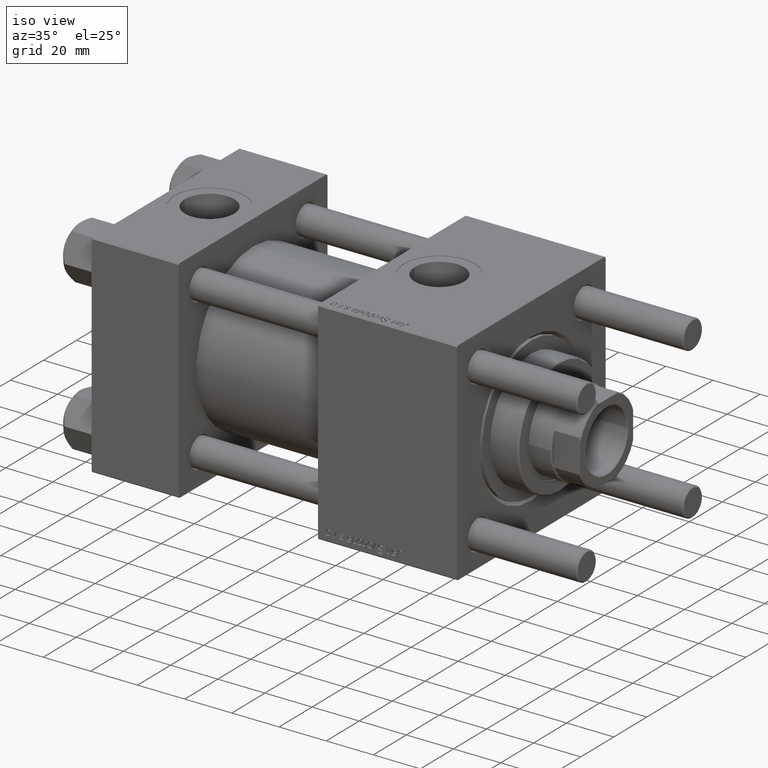
[diagram: clean part render]
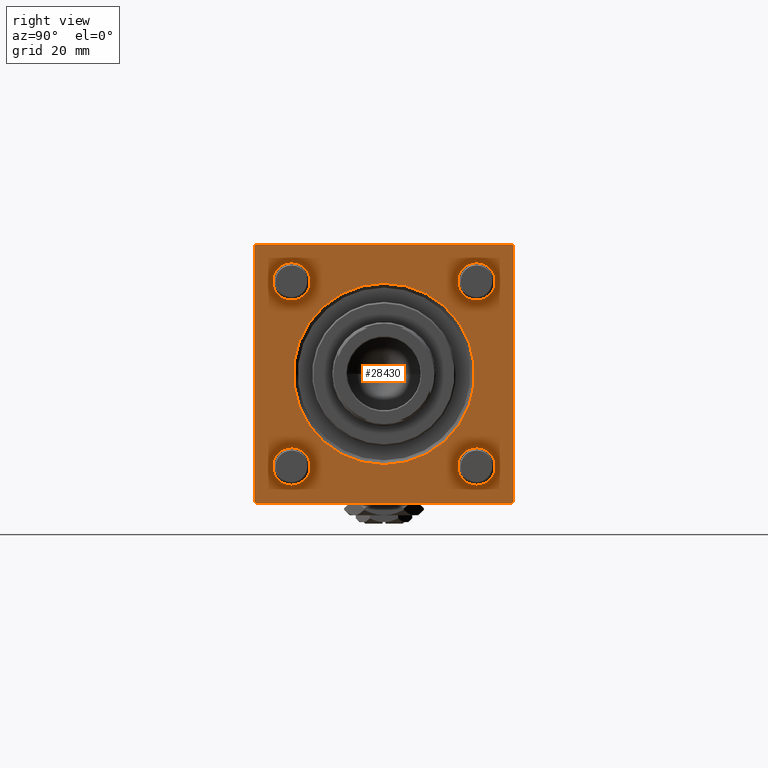
[diagram: tour spotlight — one face highlighted and labeled with its STEP entity id]
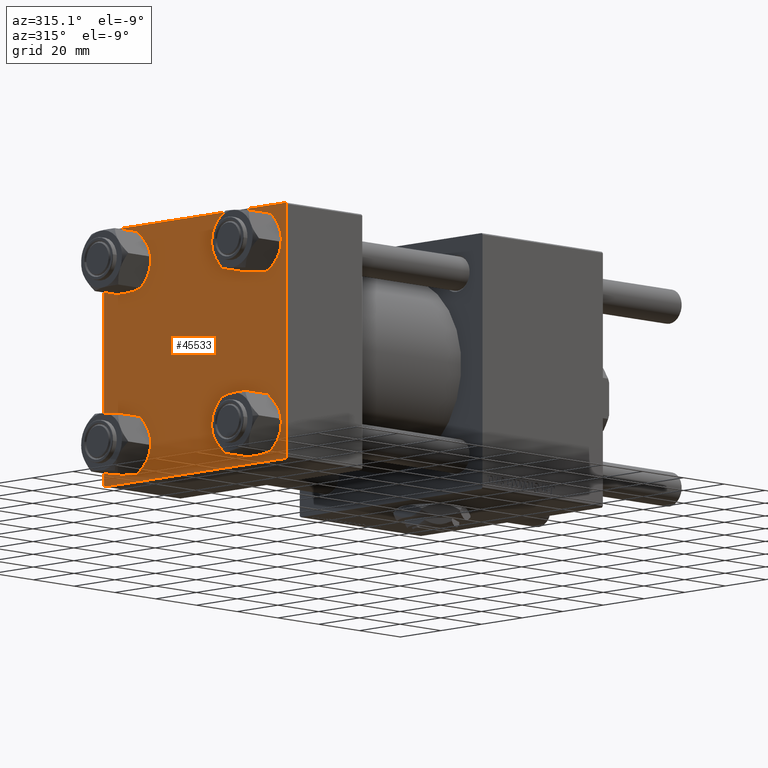
[diagram: tour spotlight — one face highlighted and labeled with its STEP entity id]
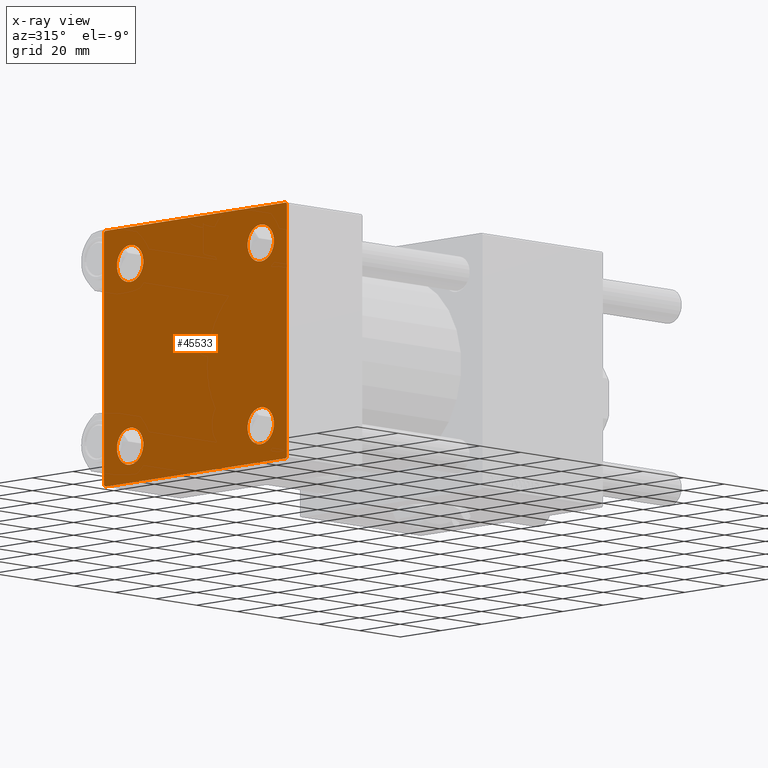
[diagram: x-ray of the same camera — body ghosted, this tour face saturated]
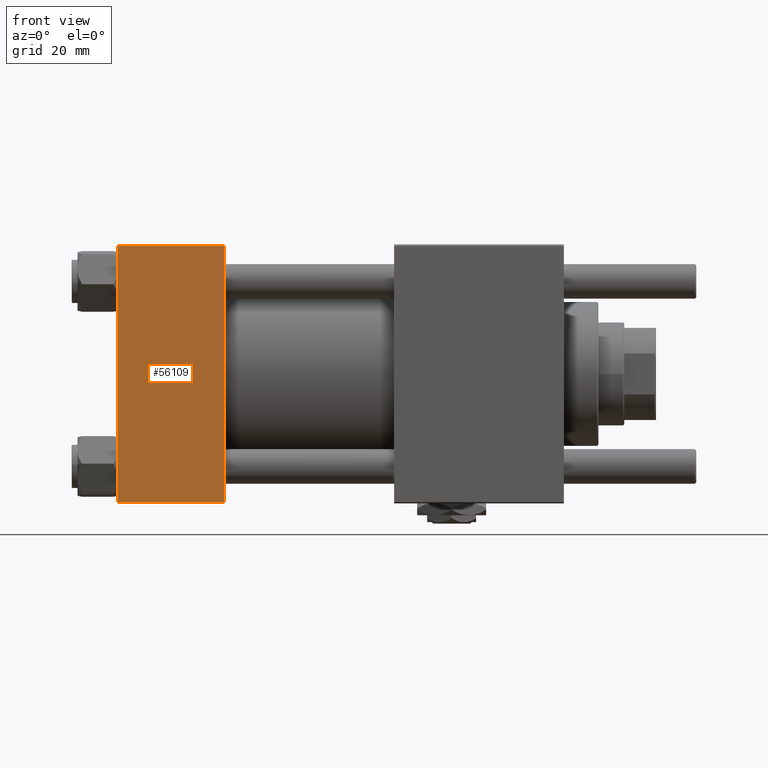
[diagram: tour spotlight — one face highlighted and labeled with its STEP entity id]
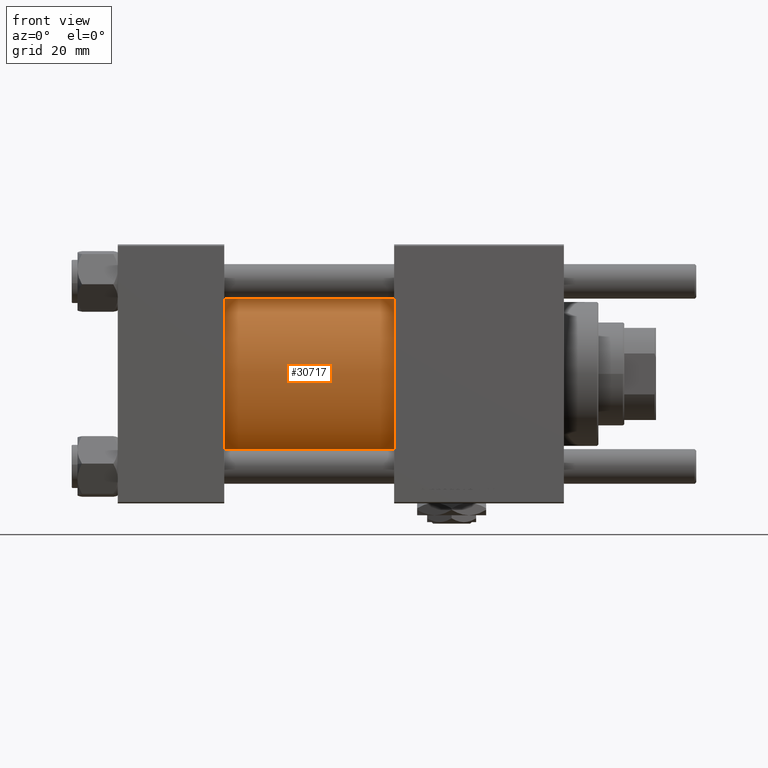
[diagram: tour spotlight — one face highlighted and labeled with its STEP entity id]
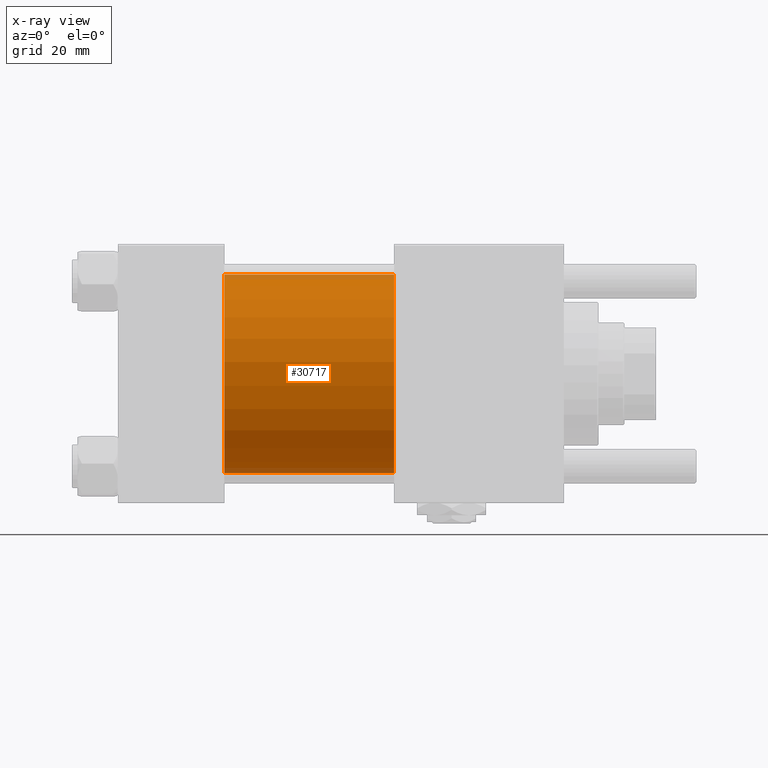
[diagram: x-ray of the same camera — body ghosted, this tour face saturated]
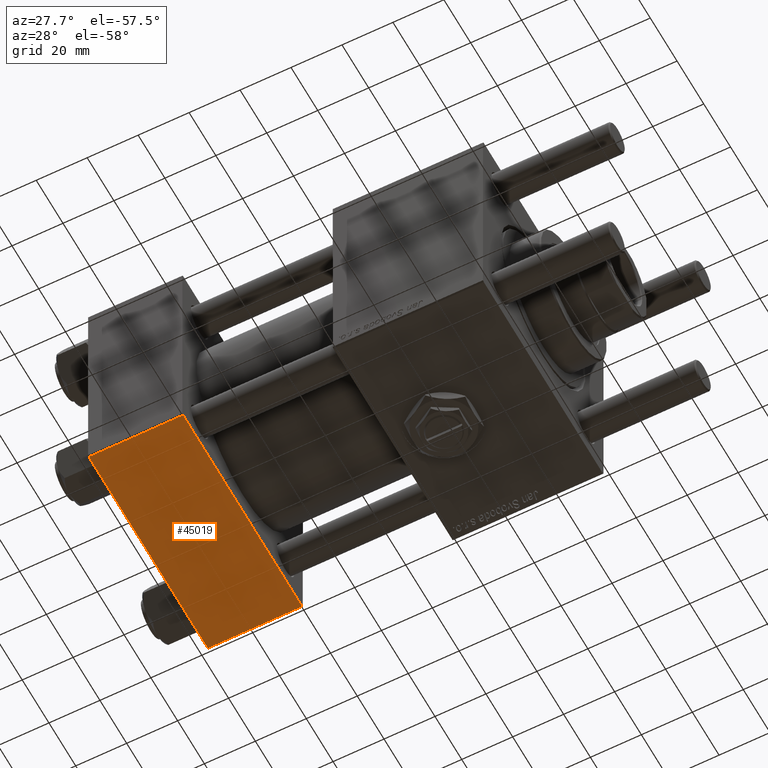
[diagram: tour spotlight — one face highlighted and labeled with its STEP entity id]
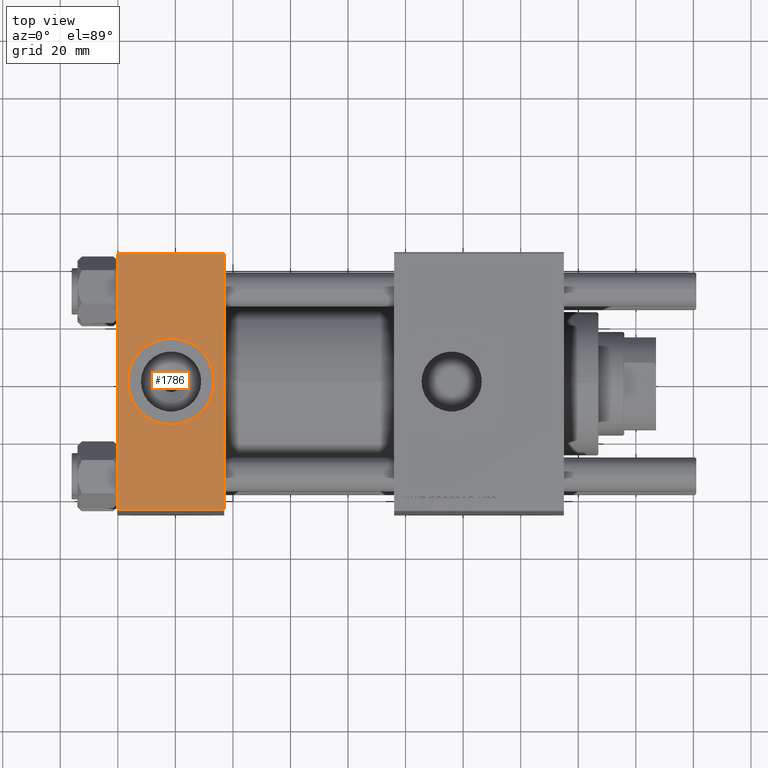
[diagram: tour spotlight — one face highlighted and labeled with its STEP entity id]
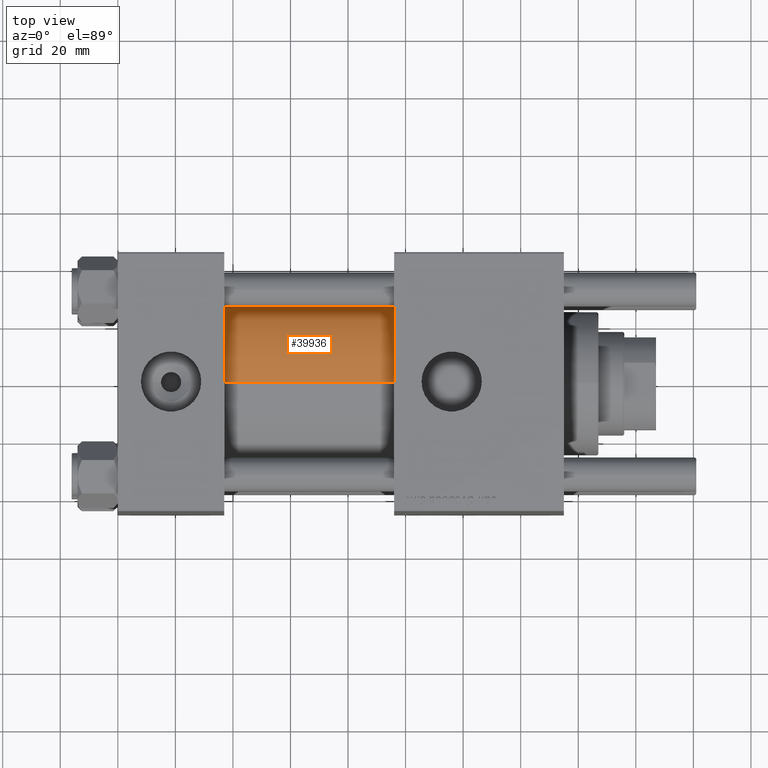
[diagram: tour spotlight — one face highlighted and labeled with its STEP entity id]
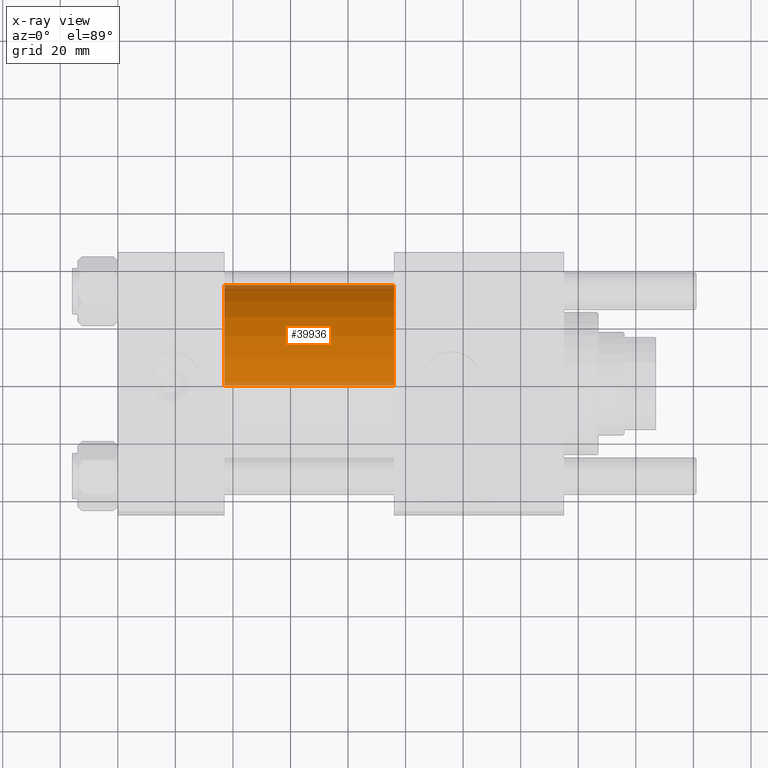
[diagram: x-ray of the same camera — body ghosted, this tour face saturated]
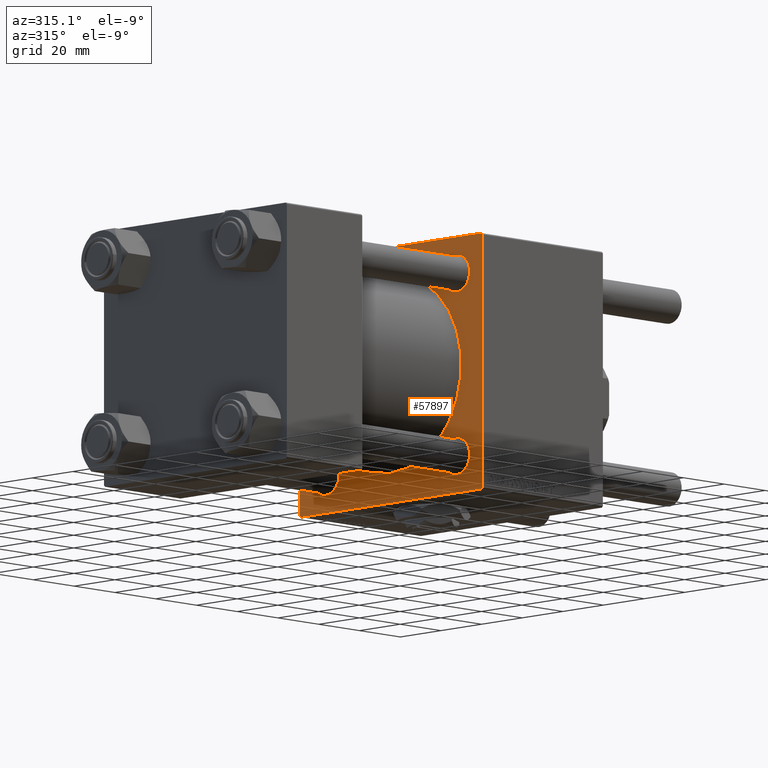
[diagram: tour spotlight — one face highlighted and labeled with its STEP entity id]
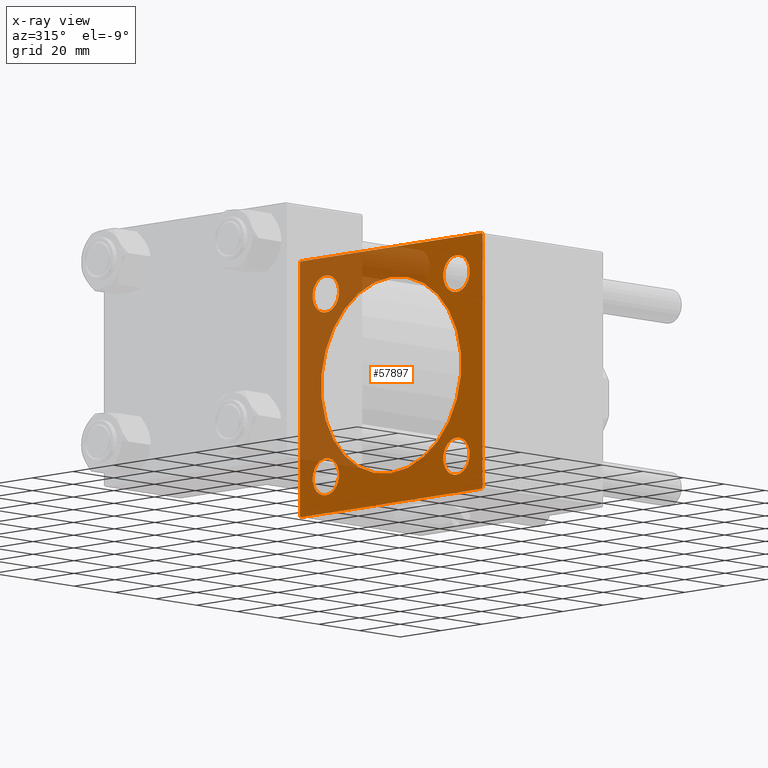
[diagram: x-ray of the same camera — body ghosted, this tour face saturated]
A machine part: a face-by-face anatomy tour. The part has 1205 B-rep faces; the first image is the clean iso view, then the 8 largest visible faces are spotlighted one at a time (largest first), each with its STEP entity span.

Face 1 — right view, entity #28430. In plain terms, the highlighted planar face has unit normal (-1, 0, 0).
Definition (entity closure, byte-faithful):
#31 = FACE_BOUND ( 'NONE', #32121, .T. ) ;
#373 = CARTESIAN_POINT ( 'NONE',  ( 155.0000000000000000, -44.49999999999992895, -45.00000000000000000 ) ) ;
#848 = VERTEX_POINT ( 'NONE', #38408 ) ;
#897 = CARTESIAN_POINT ( 'NONE',  ( 155.0000000000000000, -44.49999999999990052, -45.00000000000000000 ) ) ;
#1123 = CARTESIAN_POINT ( 'NONE',  ( 155.0000000000000000, -32.14999999999997726, -25.64999999999994884 ) ) ;
#1229 = LINE ( 'NONE', #19272, #29606 ) ;
#1291 = AXIS2_PLACEMENT_3D ( 'NONE', #49090, #13886, #18030 ) ;
#1574 = CARTESIAN_POINT ( 'NONE',  ( 155.0000000000000000, -45.00000000000000000, 44.99999999999998579 ) ) ;
#1824 = EDGE_CURVE ( 'NONE', #46805, #28833, #13482, .T. ) ;
#2066 = CARTESIAN_POINT ( 'NONE',  ( 155.0000000000000000, -32.14999999999997726, -32.15000000000001279 ) ) ;
#2698 = EDGE_CURVE ( 'NONE', #32918, #848, #1229, .T. ) ;
#2816 = LINE ( 'NONE', #6966, #52093 ) ;
#2994 = EDGE_LOOP ( 'NONE', ( #40281, #48508 ) ) ;
#2998 = DIRECTION ( 'NONE',  ( 0.000000000000000000, -0.7071067811865474617, 0.7071067811865474617 ) ) ;
#4218 = AXIS2_PLACEMENT_3D ( 'NONE', #4789, #13058, #13343 ) ;
#4522 = DIRECTION ( 'NONE',  ( 0.000000000000000000, 0.000000000000000000, 1.000000000000000000 ) ) ;
#4789 = CARTESIAN_POINT ( 'NONE',  ( 155.0000000000000000, 0.000000000000000000, 0.000000000000000000 ) ) ;
#5064 = PLANE ( 'NONE',  #39900 ) ;
#5408 = VERTEX_POINT ( 'NONE', #42977 ) ;
#5448 = EDGE_CURVE ( 'NONE', #46952, #25951, #45735, .T. ) ;
#5520 = VERTEX_POINT ( 'NONE', #12802 ) ;
#6017 = AXIS2_PLACEMENT_3D ( 'NONE', #57062, #47899, #11834 ) ;
#6966 = CARTESIAN_POINT ( 'NONE',  ( 155.0000000000000000, 45.00000000000001421, 45.00000000000000000 ) ) ;
#6998 = EDGE_CURVE ( 'NONE', #49455, #29573, #32922, .T. ) ;
#7138 = EDGE_CURVE ( 'NONE', #26456, #24566, #26173, .T. ) ;
#7631 = ORIENTED_EDGE ( 'NONE', *, *, #50485, .T. ) ;
#8079 = ORIENTED_EDGE ( 'NONE', *, *, #31095, .T. ) ;
#8859 = CIRCLE ( 'NONE', #1291, 6.500000000000061284 ) ;
#9197 = FACE_BOUND ( 'NONE', #33951, .T. ) ;
#10002 = CARTESIAN_POINT ( 'NONE',  ( 155.0000000000000000, 32.14999999999999147, 32.15000000000000568 ) ) ;
#10582 = EDGE_CURVE ( 'NONE', #5408, #42016, #16621, .T. ) ;
#10650 = CARTESIAN_POINT ( 'NONE',  ( 155.0000000000000000, 45.00000000000001421, 45.00000000000000000 ) ) ;
#10975 = LINE ( 'NONE', #29570, #34268 ) ;
#11059 = ORIENTED_EDGE ( 'NONE', *, *, #6998, .T. ) ;
#11834 = DIRECTION ( 'NONE',  ( 0.000000000000000000, 0.000000000000000000, 1.000000000000000000 ) ) ;
#11974 = CARTESIAN_POINT ( 'NONE',  ( 155.0000000000000000, 3.857637417314162689E-15, 31.50000000000000000 ) ) ;
#12587 = VECTOR ( 'NONE', #23451, 1000.000000000000000 ) ;
#12802 = CARTESIAN_POINT ( 'NONE',  ( 155.0000000000000000, 45.00000000000001421, -44.49999999999997158 ) ) ;
#12824 = DIRECTION ( 'NONE',  ( -1.000000000000000000, -0.000000000000000000, -0.000000000000000000 ) ) ;
#13058 = DIRECTION ( 'NONE',  ( -1.000000000000000000, -0.000000000000000000, -0.000000000000000000 ) ) ;
#13343 = DIRECTION ( 'NONE',  ( 0.000000000000000000, 0.000000000000000000, 1.000000000000000000 ) ) ;
#13482 = CIRCLE ( 'NONE', #41804, 6.500000000000061284 ) ;
#13886 = DIRECTION ( 'NONE',  ( -1.000000000000000000, -0.000000000000000000, -0.000000000000000000 ) ) ;
#14293 = CARTESIAN_POINT ( 'NONE',  ( 155.0000000000000000, 32.14999999999999147, 38.65000000000007674 ) ) ;
#14471 = CARTESIAN_POINT ( 'NONE',  ( 155.0000000000000000, -32.14999999999997726, 25.64999999999994884 ) ) ;
#14704 = CARTESIAN_POINT ( 'NONE',  ( 155.0000000000000000, 32.14999999999999147, -38.65000000000006963 ) ) ;
#16621 = LINE ( 'NONE', #34628, #41344 ) ;
#16968 = DIRECTION ( 'NONE',  ( 0.000000000000000000, 0.000000000000000000, 1.000000000000000000 ) ) ;
#17231 = AXIS2_PLACEMENT_3D ( 'NONE', #43121, #25103, #38092 ) ;
#18030 = DIRECTION ( 'NONE',  ( 0.000000000000000000, 0.000000000000000000, 1.000000000000000000 ) ) ;
#18056 = FACE_BOUND ( 'NONE', #54339, .T. ) ;
#19253 = CIRCLE ( 'NONE', #22077, 6.500000000000061284 ) ;
#19272 = CARTESIAN_POINT ( 'NONE',  ( 155.0000000000000000, 44.49999999999998579, 45.00000000000000000 ) ) ;
#20139 = ORIENTED_EDGE ( 'NONE', *, *, #5448, .T. ) ;
#20823 = CARTESIAN_POINT ( 'NONE',  ( 155.0000000000000000, -32.14999999999997726, 32.15000000000001279 ) ) ;
#21737 = ORIENTED_EDGE ( 'NONE', *, *, #10582, .F. ) ;
#21902 = ORIENTED_EDGE ( 'NONE', *, *, #1824, .T. ) ;
#22077 = AXIS2_PLACEMENT_3D ( 'NONE', #50452, #50153, #24128 ) ;
#22183 = CARTESIAN_POINT ( 'NONE',  ( 155.0000000000000000, -44.49999999999994316, 44.99999999999998579 ) ) ;
#22785 = CARTESIAN_POINT ( 'NONE',  ( 155.0000000000000000, 0.000000000000000000, 0.000000000000000000 ) ) ;
#23336 = AXIS2_PLACEMENT_3D ( 'NONE', #20823, #12824, #16968 ) ;
#23354 = CARTESIAN_POINT ( 'NONE',  ( 155.0000000000000000, 0.000000000000000000, -31.50000000000000000 ) ) ;
#23451 = DIRECTION ( 'NONE',  ( 0.000000000000000000, 7.709882115452478166E-17, -1.000000000000000000 ) ) ;
#24128 = DIRECTION ( 'NONE',  ( 0.000000000000000000, 0.000000000000000000, 1.000000000000000000 ) ) ;
#24167 = DIRECTION ( 'NONE',  ( 0.000000000000000000, 0.000000000000000000, 1.000000000000000000 ) ) ;
#24274 = DIRECTION ( 'NONE',  ( -0.000000000000000000, 0.7071067811865474617, 0.7071067811865474617 ) ) ;
#24566 = VERTEX_POINT ( 'NONE', #48976 ) ;
#24993 = DIRECTION ( 'NONE',  ( 0.000000000000000000, 0.000000000000000000, -1.000000000000000000 ) ) ;
#25103 = DIRECTION ( 'NONE',  ( -1.000000000000000000, -0.000000000000000000, -0.000000000000000000 ) ) ;
#25265 = EDGE_CURVE ( 'NONE', #52592, #51415, #53965, .T. ) ;
#25951 = VERTEX_POINT ( 'NONE', #23354 ) ;
#26173 = CIRCLE ( 'NONE', #23336, 6.500000000000061284 ) ;
#26456 = VERTEX_POINT ( 'NONE', #14471 ) ;
#27093 = VECTOR ( 'NONE', #47129, 1000.000000000000114 ) ;
#27221 = DIRECTION ( 'NONE',  ( -0.000000000000000000, 0.000000000000000000, 1.000000000000000000 ) ) ;
#28430 = ADVANCED_FACE ( 'NONE', ( #54999, #31, #9197, #31640, #18056, #36079 ), #5064, .F. ) ;
#28833 = VERTEX_POINT ( 'NONE', #14293 ) ;
#29312 = DIRECTION ( 'NONE',  ( 0.000000000000000000, -1.000000000000000000, 0.000000000000000000 ) ) ;
#29500 = VECTOR ( 'NONE', #36993, 1000.000000000000000 ) ;
#29570 = CARTESIAN_POINT ( 'NONE',  ( 155.0000000000000000, 45.00000000000001421, -44.50000000000000000 ) ) ;
#29573 = VERTEX_POINT ( 'NONE', #32750 ) ;
#29606 = VECTOR ( 'NONE', #2998, 1000.000000000000114 ) ;
#30936 = CARTESIAN_POINT ( 'NONE',  ( 155.0000000000000000, 45.00000000000001421, 44.49999999999997158 ) ) ;
#31095 = EDGE_CURVE ( 'NONE', #28833, #46805, #8859, .T. ) ;
#31640 = FACE_BOUND ( 'NONE', #49278, .T. ) ;
#31876 = VERTEX_POINT ( 'NONE', #46651 ) ;
#32121 = EDGE_LOOP ( 'NONE', ( #49664, #38346 ) ) ;
#32511 = DIRECTION ( 'NONE',  ( -1.000000000000000000, -0.000000000000000000, -0.000000000000000000 ) ) ;
#32750 = CARTESIAN_POINT ( 'NONE',  ( 155.0000000000000000, -45.00000000000000000, 44.49999999999995737 ) ) ;
#32834 = LINE ( 'NONE', #373, #29500 ) ;
#32874 = LINE ( 'NONE', #1574, #12587 ) ;
#32918 = VERTEX_POINT ( 'NONE', #30936 ) ;
#32922 = LINE ( 'NONE', #51273, #27093 ) ;
#33113 = ORIENTED_EDGE ( 'NONE', *, *, #34390, .T. ) ;
#33902 = CARTESIAN_POINT ( 'NONE',  ( 155.0000000000000000, -32.14999999999997726, -32.15000000000001279 ) ) ;
#33951 = EDGE_LOOP ( 'NONE', ( #21902, #8079 ) ) ;
#34080 = CARTESIAN_POINT ( 'NONE',  ( 155.0000000000000000, 0.000000000000000000, 0.000000000000000000 ) ) ;
#34268 = VECTOR ( 'NONE', #24274, 1000.000000000000114 ) ;
#34390 = EDGE_CURVE ( 'NONE', #25951, #46952, #51433, .T. ) ;
#34628 = CARTESIAN_POINT ( 'NONE',  ( 155.0000000000000000, 45.00000000000001421, -45.00000000000000000 ) ) ;
#34950 = DIRECTION ( 'NONE',  ( -1.000000000000000000, -0.000000000000000000, -0.000000000000000000 ) ) ;
#35524 = CIRCLE ( 'NONE', #43099, 6.500000000000061284 ) ;
#36079 = FACE_OUTER_BOUND ( 'NONE', #52954, .T. ) ;
#36326 = ORIENTED_EDGE ( 'NONE', *, *, #56620, .T. ) ;
#36993 = DIRECTION ( 'NONE',  ( 0.000000000000000000, 0.7071067811865524577, -0.7071067811865426878 ) ) ;
#37168 = DIRECTION ( 'NONE',  ( -1.000000000000000000, -0.000000000000000000, -0.000000000000000000 ) ) ;
#38092 = DIRECTION ( 'NONE',  ( 0.000000000000000000, 0.000000000000000000, 1.000000000000000000 ) ) ;
#38149 = ORIENTED_EDGE ( 'NONE', *, *, #57644, .T. ) ;
#38346 = ORIENTED_EDGE ( 'NONE', *, *, #49038, .T. ) ;
#38408 = CARTESIAN_POINT ( 'NONE',  ( 155.0000000000000000, 44.49999999999998579, 45.00000000000000000 ) ) ;
#38743 = ORIENTED_EDGE ( 'NONE', *, *, #41939, .T. ) ;
#39408 = ORIENTED_EDGE ( 'NONE', *, *, #2698, .T. ) ;
#39900 = AXIS2_PLACEMENT_3D ( 'NONE', #22785, #40809, #27221 ) ;
#40203 = VERTEX_POINT ( 'NONE', #14704 ) ;
#40281 = ORIENTED_EDGE ( 'NONE', *, *, #41988, .T. ) ;
#40760 = VERTEX_POINT ( 'NONE', #54475 ) ;
#40809 = DIRECTION ( 'NONE',  ( -1.000000000000000000, 0.000000000000000000, -0.000000000000000000 ) ) ;
#41344 = VECTOR ( 'NONE', #29312, 1000.000000000000000 ) ;
#41804 = AXIS2_PLACEMENT_3D ( 'NONE', #10002, #37168, #24167 ) ;
#41865 = CIRCLE ( 'NONE', #6017, 6.500000000000061284 ) ;
#41939 = EDGE_CURVE ( 'NONE', #848, #49455, #46995, .T. ) ;
#41988 = EDGE_CURVE ( 'NONE', #51415, #52592, #35524, .T. ) ;
#42016 = VERTEX_POINT ( 'NONE', #897 ) ;
#42713 = CIRCLE ( 'NONE', #17231, 6.500000000000061284 ) ;
#42792 = DIRECTION ( 'NONE',  ( 0.000000000000000000, 0.000000000000000000, 1.000000000000000000 ) ) ;
#42977 = CARTESIAN_POINT ( 'NONE',  ( 155.0000000000000000, 44.50000000000001421, -45.00000000000000000 ) ) ;
#43099 = AXIS2_PLACEMENT_3D ( 'NONE', #2066, #32511, #55587 ) ;
#43121 = CARTESIAN_POINT ( 'NONE',  ( 155.0000000000000000, 32.14999999999999147, -32.15000000000000568 ) ) ;
#45735 = CIRCLE ( 'NONE', #58015, 31.50000000000000000 ) ;
#46124 = DIRECTION ( 'NONE',  ( 0.000000000000000000, -1.000000000000000000, -1.541976423090495140E-16 ) ) ;
#46651 = CARTESIAN_POINT ( 'NONE',  ( 155.0000000000000000, 32.14999999999999147, -25.64999999999994529 ) ) ;
#46805 = VERTEX_POINT ( 'NONE', #48037 ) ;
#46867 = EDGE_CURVE ( 'NONE', #32918, #5520, #2816, .T. ) ;
#46952 = VERTEX_POINT ( 'NONE', #11974 ) ;
#46995 = LINE ( 'NONE', #10650, #53521 ) ;
#47129 = DIRECTION ( 'NONE',  ( -0.000000000000000000, -0.7071067811865474617, -0.7071067811865474617 ) ) ;
#47163 = ORIENTED_EDGE ( 'NONE', *, *, #49357, .T. ) ;
#47332 = AXIS2_PLACEMENT_3D ( 'NONE', #33902, #51666, #42792 ) ;
#47899 = DIRECTION ( 'NONE',  ( -1.000000000000000000, -0.000000000000000000, -0.000000000000000000 ) ) ;
#48037 = CARTESIAN_POINT ( 'NONE',  ( 155.0000000000000000, 32.14999999999999147, 25.64999999999994529 ) ) ;
#48508 = ORIENTED_EDGE ( 'NONE', *, *, #25265, .T. ) ;
#48976 = CARTESIAN_POINT ( 'NONE',  ( 155.0000000000000000, -32.14999999999997726, 38.65000000000007674 ) ) ;
#49038 = EDGE_CURVE ( 'NONE', #31876, #40203, #42713, .T. ) ;
#49090 = CARTESIAN_POINT ( 'NONE',  ( 155.0000000000000000, 32.14999999999999147, 32.15000000000000568 ) ) ;
#49278 = EDGE_LOOP ( 'NONE', ( #49902, #38149 ) ) ;
#49357 = EDGE_CURVE ( 'NONE', #40760, #42016, #32834, .T. ) ;
#49455 = VERTEX_POINT ( 'NONE', #22183 ) ;
#49664 = ORIENTED_EDGE ( 'NONE', *, *, #55888, .T. ) ;
#49902 = ORIENTED_EDGE ( 'NONE', *, *, #7138, .T. ) ;
#50153 = DIRECTION ( 'NONE',  ( -1.000000000000000000, -0.000000000000000000, -0.000000000000000000 ) ) ;
#50452 = CARTESIAN_POINT ( 'NONE',  ( 155.0000000000000000, -32.14999999999997726, 32.15000000000001279 ) ) ;
#50485 = EDGE_CURVE ( 'NONE', #5408, #5520, #10975, .T. ) ;
#51273 = CARTESIAN_POINT ( 'NONE',  ( 155.0000000000000000, -45.00000000000000000, 44.49999999999995737 ) ) ;
#51415 = VERTEX_POINT ( 'NONE', #56575 ) ;
#51433 = CIRCLE ( 'NONE', #4218, 31.50000000000000000 ) ;
#51666 = DIRECTION ( 'NONE',  ( -1.000000000000000000, -0.000000000000000000, -0.000000000000000000 ) ) ;
#52093 = VECTOR ( 'NONE', #24993, 1000.000000000000000 ) ;
#52592 = VERTEX_POINT ( 'NONE', #1123 ) ;
#52954 = EDGE_LOOP ( 'NONE', ( #36326, #47163, #21737, #7631, #56449, #39408, #38743, #11059 ) ) ;
#53521 = VECTOR ( 'NONE', #46124, 1000.000000000000000 ) ;
#53965 = CIRCLE ( 'NONE', #47332, 6.500000000000061284 ) ;
#54339 = EDGE_LOOP ( 'NONE', ( #33113, #20139 ) ) ;
#54475 = CARTESIAN_POINT ( 'NONE',  ( 155.0000000000000000, -44.99999999999999289, -44.49999999999991473 ) ) ;
#54999 = FACE_BOUND ( 'NONE', #2994, .T. ) ;
#55587 = DIRECTION ( 'NONE',  ( 0.000000000000000000, 0.000000000000000000, 1.000000000000000000 ) ) ;
#55888 = EDGE_CURVE ( 'NONE', #40203, #31876, #41865, .T. ) ;
#56449 = ORIENTED_EDGE ( 'NONE', *, *, #46867, .F. ) ;
#56575 = CARTESIAN_POINT ( 'NONE',  ( 155.0000000000000000, -32.14999999999997726, -38.65000000000007674 ) ) ;
#56620 = EDGE_CURVE ( 'NONE', #29573, #40760, #32874, .T. ) ;
#57062 = CARTESIAN_POINT ( 'NONE',  ( 155.0000000000000000, 32.14999999999999147, -32.15000000000000568 ) ) ;
#57644 = EDGE_CURVE ( 'NONE', #24566, #26456, #19253, .T. ) ;
#58015 = AXIS2_PLACEMENT_3D ( 'NONE', #34080, #34950, #4522 ) ;

Face 2 — auxiliary view, entity #45533. An x-ray twin of the same camera follows (body ghosted, this face saturated) — the face is partly hidden behind the body. In plain terms, the highlighted planar face has unit normal (-1, 0, 0).
Definition (entity closure, byte-faithful):
#120 = CARTESIAN_POINT ( 'NONE',  ( 0.000000000000000000, 44.99999999999998579, -44.99999999999998579 ) ) ;
#268 = CARTESIAN_POINT ( 'NONE',  ( 0.000000000000000000, -32.14999999999997726, 38.65000000000003411 ) ) ;
#336 = VERTEX_POINT ( 'NONE', #36707 ) ;
#358 = CARTESIAN_POINT ( 'NONE',  ( 0.000000000000000000, -45.00000000000000000, -44.49999999999995737 ) ) ;
#979 = VECTOR ( 'NONE', #26286, 1000.000000000000114 ) ;
#2257 = VERTEX_POINT ( 'NONE', #35319 ) ;
#2371 = FACE_BOUND ( 'NONE', #27456, .T. ) ;
#2696 = LINE ( 'NONE', #20719, #8573 ) ;
#2964 = DIRECTION ( 'NONE',  ( -0.000000000000000000, -0.7071067811865474617, -0.7071067811865474617 ) ) ;
#3147 = EDGE_LOOP ( 'NONE', ( #18236, #6413 ) ) ;
#3253 = CARTESIAN_POINT ( 'NONE',  ( 0.000000000000000000, 44.74999999999999289, 44.74999999999999289 ) ) ;
#3296 = VERTEX_POINT ( 'NONE', #48000 ) ;
#3368 = ORIENTED_EDGE ( 'NONE', *, *, #24876, .T. ) ;
#3548 = DIRECTION ( 'NONE',  ( 0.000000000000000000, 0.000000000000000000, -1.000000000000000000 ) ) ;
#3590 = VERTEX_POINT ( 'NONE', #55341 ) ;
#4195 = VERTEX_POINT ( 'NONE', #27415 ) ;
#4947 = CARTESIAN_POINT ( 'NONE',  ( 0.000000000000000000, 44.99999999999998579, 45.00000000000001421 ) ) ;
#5131 = VECTOR ( 'NONE', #14079, 1000.000000000000000 ) ;
#5657 = EDGE_CURVE ( 'NONE', #19759, #11925, #6091, .T. ) ;
#6027 = DIRECTION ( 'NONE',  ( 1.000000000000000000, -0.000000000000000000, 0.000000000000000000 ) ) ;
#6091 = CIRCLE ( 'NONE', #50468, 6.500000000000019540 ) ;
#6106 = DIRECTION ( 'NONE',  ( 1.000000000000000000, -0.000000000000000000, 0.000000000000000000 ) ) ;
#6413 = ORIENTED_EDGE ( 'NONE', *, *, #5657, .T. ) ;
#6512 = VECTOR ( 'NONE', #18139, 1000.000000000000000 ) ;
#6816 = CARTESIAN_POINT ( 'NONE',  ( 0.000000000000000000, 44.99999999999998579, 45.00000000000001421 ) ) ;
#6898 = VECTOR ( 'NONE', #36948, 1000.000000000000000 ) ;
#7297 = EDGE_LOOP ( 'NONE', ( #25107, #24026 ) ) ;
#7679 = FACE_BOUND ( 'NONE', #7297, .T. ) ;
#7788 = EDGE_CURVE ( 'NONE', #44634, #51547, #14814, .T. ) ;
#7908 = DIRECTION ( 'NONE',  ( 1.000000000000000000, -0.000000000000000000, 0.000000000000000000 ) ) ;
#8573 = VECTOR ( 'NONE', #11854, 1000.000000000000114 ) ;
#8800 = LINE ( 'NONE', #4947, #5131 ) ;
#9449 = VECTOR ( 'NONE', #40441, 1000.000000000000114 ) ;
#9480 = CARTESIAN_POINT ( 'NONE',  ( 0.000000000000000000, -45.00000000000000711, 45.00000000000000000 ) ) ;
#9730 = DIRECTION ( 'NONE',  ( 0.000000000000000000, 0.000000000000000000, 1.000000000000000000 ) ) ;
#10621 = CARTESIAN_POINT ( 'NONE',  ( 0.000000000000000000, -32.14999999999997726, -25.65000000000003411 ) ) ;
#10897 = CARTESIAN_POINT ( 'NONE',  ( 0.000000000000000000, -32.14999999999997726, -32.15000000000001279 ) ) ;
#11854 = DIRECTION ( 'NONE',  ( 0.000000000000000000, -0.7071067811865474617, 0.7071067811865474617 ) ) ;
#11925 = VERTEX_POINT ( 'NONE', #268 ) ;
#12108 = FACE_BOUND ( 'NONE', #43196, .T. ) ;
#12565 = EDGE_CURVE ( 'NONE', #3296, #4195, #40598, .T. ) ;
#12698 = EDGE_CURVE ( 'NONE', #11925, #19759, #54649, .T. ) ;
#12734 = CARTESIAN_POINT ( 'NONE',  ( 0.000000000000000000, -44.49999999999995737, 45.00000000000000000 ) ) ;
#12989 = DIRECTION ( 'NONE',  ( 0.000000000000000000, 0.000000000000000000, 1.000000000000000000 ) ) ;
#13443 = ORIENTED_EDGE ( 'NONE', *, *, #15309, .T. ) ;
#13692 = AXIS2_PLACEMENT_3D ( 'NONE', #39746, #17297, #39183 ) ;
#13843 = EDGE_CURVE ( 'NONE', #15870, #3296, #47595, .T. ) ;
#13864 = ORIENTED_EDGE ( 'NONE', *, *, #54947, .F. ) ;
#14079 = DIRECTION ( 'NONE',  ( 0.000000000000000000, -1.000000000000000000, -1.541976423090495387E-16 ) ) ;
#14814 = CIRCLE ( 'NONE', #25203, 6.499999999999977796 ) ;
#14834 = ORIENTED_EDGE ( 'NONE', *, *, #44397, .T. ) ;
#15309 = EDGE_CURVE ( 'NONE', #336, #20875, #30194, .T. ) ;
#15479 = ORIENTED_EDGE ( 'NONE', *, *, #12565, .T. ) ;
#15870 = VERTEX_POINT ( 'NONE', #29009 ) ;
#16030 = AXIS2_PLACEMENT_3D ( 'NONE', #37114, #6106, #55165 ) ;
#16243 = FACE_BOUND ( 'NONE', #3147, .T. ) ;
#16345 = ORIENTED_EDGE ( 'NONE', *, *, #13843, .T. ) ;
#16679 = ORIENTED_EDGE ( 'NONE', *, *, #35314, .T. ) ;
#16927 = EDGE_CURVE ( 'NONE', #44267, #49450, #31270, .T. ) ;
#17297 = DIRECTION ( 'NONE',  ( 1.000000000000000000, -0.000000000000000000, 0.000000000000000000 ) ) ;
#17392 = DIRECTION ( 'NONE',  ( 0.000000000000000000, 0.000000000000000000, 1.000000000000000000 ) ) ;
#17851 = EDGE_CURVE ( 'NONE', #3590, #24816, #32076, .T. ) ;
#18139 = DIRECTION ( 'NONE',  ( 0.000000000000000000, -1.000000000000000000, -1.541976423090495633E-16 ) ) ;
#18236 = ORIENTED_EDGE ( 'NONE', *, *, #12698, .T. ) ;
#18520 = EDGE_CURVE ( 'NONE', #4195, #22665, #2696, .T. ) ;
#18646 = LINE ( 'NONE', #9480, #6898 ) ;
#19759 = VERTEX_POINT ( 'NONE', #28865 ) ;
#20687 = FACE_OUTER_BOUND ( 'NONE', #42096, .T. ) ;
#20719 = CARTESIAN_POINT ( 'NONE',  ( 0.000000000000000000, -44.74999999999998579, -44.74999999999998579 ) ) ;
#20875 = VERTEX_POINT ( 'NONE', #37263 ) ;
#21670 = ORIENTED_EDGE ( 'NONE', *, *, #17851, .T. ) ;
#21772 = AXIS2_PLACEMENT_3D ( 'NONE', #10897, #50804, #9730 ) ;
#22050 = EDGE_CURVE ( 'NONE', #51547, #44634, #52924, .T. ) ;
#22665 = VERTEX_POINT ( 'NONE', #358 ) ;
#24026 = ORIENTED_EDGE ( 'NONE', *, *, #7788, .T. ) ;
#24816 = VERTEX_POINT ( 'NONE', #51449 ) ;
#24876 = EDGE_CURVE ( 'NONE', #40698, #15870, #44032, .T. ) ;
#24918 = DIRECTION ( 'NONE',  ( 0.000000000000000000, 0.000000000000000000, 1.000000000000000000 ) ) ;
#25107 = ORIENTED_EDGE ( 'NONE', *, *, #22050, .T. ) ;
#25203 = AXIS2_PLACEMENT_3D ( 'NONE', #42530, #37801, #55854 ) ;
#25389 = CARTESIAN_POINT ( 'NONE',  ( 0.000000000000000000, -32.14999999999997726, 32.15000000000001279 ) ) ;
#25706 = PLANE ( 'NONE',  #36919 ) ;
#26286 = DIRECTION ( 'NONE',  ( 0.000000000000000000, 0.7071067811865474617, -0.7071067811865474617 ) ) ;
#27415 = CARTESIAN_POINT ( 'NONE',  ( 0.000000000000000000, -44.49999999999995737, -45.00000000000000000 ) ) ;
#27434 = AXIS2_PLACEMENT_3D ( 'NONE', #35156, #53216, #12989 ) ;
#27456 = EDGE_LOOP ( 'NONE', ( #16679, #13443 ) ) ;
#28256 = VECTOR ( 'NONE', #2964, 1000.000000000000114 ) ;
#28865 = CARTESIAN_POINT ( 'NONE',  ( 0.000000000000000000, -32.14999999999997726, 25.64999999999999147 ) ) ;
#29009 = CARTESIAN_POINT ( 'NONE',  ( 0.000000000000000000, 44.99999999999998579, -44.49999999999995737 ) ) ;
#30194 = CIRCLE ( 'NONE', #16030, 6.499999999999977796 ) ;
#30702 = CIRCLE ( 'NONE', #13692, 6.499999999999977796 ) ;
#31008 = ORIENTED_EDGE ( 'NONE', *, *, #58477, .F. ) ;
#31270 = LINE ( 'NONE', #40732, #9449 ) ;
#32013 = CARTESIAN_POINT ( 'NONE',  ( 0.000000000000000000, -32.14999999999997726, -38.64999999999999147 ) ) ;
#32076 = CIRCLE ( 'NONE', #47212, 6.499999999999977796 ) ;
#33971 = CARTESIAN_POINT ( 'NONE',  ( 0.000000000000000000, 44.74999999999998579, -44.74999999999998579 ) ) ;
#34286 = CARTESIAN_POINT ( 'NONE',  ( 0.000000000000000000, -45.00000000000000711, 44.49999999999997158 ) ) ;
#35156 = CARTESIAN_POINT ( 'NONE',  ( 0.000000000000000000, 32.14999999999999147, -32.15000000000000568 ) ) ;
#35314 = EDGE_CURVE ( 'NONE', #20875, #336, #30702, .T. ) ;
#35319 = CARTESIAN_POINT ( 'NONE',  ( 0.000000000000000000, 44.49999999999998579, 45.00000000000001421 ) ) ;
#36707 = CARTESIAN_POINT ( 'NONE',  ( 0.000000000000000000, 32.14999999999999147, 25.65000000000002700 ) ) ;
#36919 = AXIS2_PLACEMENT_3D ( 'NONE', #47583, #38704, #39292 ) ;
#36948 = DIRECTION ( 'NONE',  ( 0.000000000000000000, 7.709882115452476934E-17, -1.000000000000000000 ) ) ;
#37114 = CARTESIAN_POINT ( 'NONE',  ( 0.000000000000000000, 32.14999999999999147, 32.15000000000000568 ) ) ;
#37263 = CARTESIAN_POINT ( 'NONE',  ( 0.000000000000000000, 32.14999999999999147, 38.64999999999999147 ) ) ;
#37801 = DIRECTION ( 'NONE',  ( 1.000000000000000000, -0.000000000000000000, 0.000000000000000000 ) ) ;
#38704 = DIRECTION ( 'NONE',  ( -1.000000000000000000, 0.000000000000000000, -0.000000000000000000 ) ) ;
#38852 = VECTOR ( 'NONE', #3548, 1000.000000000000000 ) ;
#39183 = DIRECTION ( 'NONE',  ( 0.000000000000000000, 0.000000000000000000, 1.000000000000000000 ) ) ;
#39288 = ORIENTED_EDGE ( 'NONE', *, *, #16927, .T. ) ;
#39292 = DIRECTION ( 'NONE',  ( -0.000000000000000000, 0.000000000000000000, 1.000000000000000000 ) ) ;
#39746 = CARTESIAN_POINT ( 'NONE',  ( 0.000000000000000000, 32.14999999999999147, 32.15000000000000568 ) ) ;
#40441 = DIRECTION ( 'NONE',  ( -0.000000000000000000, 0.7071067811865425767, 0.7071067811865524577 ) ) ;
#40598 = LINE ( 'NONE', #120, #6512 ) ;
#40698 = VERTEX_POINT ( 'NONE', #44148 ) ;
#40732 = CARTESIAN_POINT ( 'NONE',  ( -0.000000000000000000, -44.75000000000029843, 44.74999999999967315 ) ) ;
#42096 = EDGE_LOOP ( 'NONE', ( #3368, #16345, #15479, #47781, #13864, #39288, #31008, #52533 ) ) ;
#42190 = EDGE_CURVE ( 'NONE', #2257, #40698, #52621, .T. ) ;
#42530 = CARTESIAN_POINT ( 'NONE',  ( 0.000000000000000000, -32.14999999999997726, -32.15000000000001279 ) ) ;
#43196 = EDGE_LOOP ( 'NONE', ( #14834, #21670 ) ) ;
#44032 = LINE ( 'NONE', #6816, #38852 ) ;
#44148 = CARTESIAN_POINT ( 'NONE',  ( 0.000000000000000000, 44.99999999999998579, 44.50000000000001421 ) ) ;
#44267 = VERTEX_POINT ( 'NONE', #34286 ) ;
#44397 = EDGE_CURVE ( 'NONE', #24816, #3590, #52943, .T. ) ;
#44634 = VERTEX_POINT ( 'NONE', #32013 ) ;
#45533 = ADVANCED_FACE ( 'NONE', ( #16243, #7679, #12108, #2371, #20687 ), #25706, .T. ) ;
#47085 = CARTESIAN_POINT ( 'NONE',  ( 0.000000000000000000, -32.14999999999997726, 32.15000000000001279 ) ) ;
#47212 = AXIS2_PLACEMENT_3D ( 'NONE', #48402, #7908, #47825 ) ;
#47583 = CARTESIAN_POINT ( 'NONE',  ( 0.000000000000000000, 0.000000000000000000, 0.000000000000000000 ) ) ;
#47595 = LINE ( 'NONE', #33971, #28256 ) ;
#47781 = ORIENTED_EDGE ( 'NONE', *, *, #18520, .T. ) ;
#47825 = DIRECTION ( 'NONE',  ( 0.000000000000000000, 0.000000000000000000, 1.000000000000000000 ) ) ;
#48000 = CARTESIAN_POINT ( 'NONE',  ( 0.000000000000000000, 44.49999999999998579, -44.99999999999998579 ) ) ;
#48402 = CARTESIAN_POINT ( 'NONE',  ( 0.000000000000000000, 32.14999999999999147, -32.15000000000000568 ) ) ;
#48999 = AXIS2_PLACEMENT_3D ( 'NONE', #47085, #6027, #24918 ) ;
#49450 = VERTEX_POINT ( 'NONE', #12734 ) ;
#50468 = AXIS2_PLACEMENT_3D ( 'NONE', #25389, #58178, #17392 ) ;
#50804 = DIRECTION ( 'NONE',  ( 1.000000000000000000, -0.000000000000000000, 0.000000000000000000 ) ) ;
#51449 = CARTESIAN_POINT ( 'NONE',  ( 0.000000000000000000, 32.14999999999999147, -25.65000000000002700 ) ) ;
#51547 = VERTEX_POINT ( 'NONE', #10621 ) ;
#52533 = ORIENTED_EDGE ( 'NONE', *, *, #42190, .T. ) ;
#52621 = LINE ( 'NONE', #3253, #979 ) ;
#52924 = CIRCLE ( 'NONE', #21772, 6.499999999999977796 ) ;
#52943 = CIRCLE ( 'NONE', #27434, 6.499999999999977796 ) ;
#53216 = DIRECTION ( 'NONE',  ( 1.000000000000000000, -0.000000000000000000, 0.000000000000000000 ) ) ;
#54649 = CIRCLE ( 'NONE', #48999, 6.500000000000019540 ) ;
#54947 = EDGE_CURVE ( 'NONE', #44267, #22665, #18646, .T. ) ;
#55165 = DIRECTION ( 'NONE',  ( 0.000000000000000000, 0.000000000000000000, 1.000000000000000000 ) ) ;
#55341 = CARTESIAN_POINT ( 'NONE',  ( 0.000000000000000000, 32.14999999999999147, -38.64999999999998437 ) ) ;
#55854 = DIRECTION ( 'NONE',  ( 0.000000000000000000, 0.000000000000000000, 1.000000000000000000 ) ) ;
#58178 = DIRECTION ( 'NONE',  ( 1.000000000000000000, -0.000000000000000000, 0.000000000000000000 ) ) ;
#58477 = EDGE_CURVE ( 'NONE', #2257, #49450, #8800, .T. ) ;

Face 3 — front view, entity #56109. In plain terms, the highlighted planar face has unit normal (0, 1, 0).
Definition (entity closure, byte-faithful):
#358 = CARTESIAN_POINT ( 'NONE',  ( 0.000000000000000000, -45.00000000000000000, -44.49999999999995737 ) ) ;
#5394 = EDGE_CURVE ( 'NONE', #6213, #21557, #34377, .T. ) ;
#6213 = VERTEX_POINT ( 'NONE', #50971 ) ;
#6747 = DIRECTION ( 'NONE',  ( -0.000000000000000000, 1.000000000000000000, 7.709882115452478166E-17 ) ) ;
#6898 = VECTOR ( 'NONE', #36948, 1000.000000000000000 ) ;
#8735 = EDGE_LOOP ( 'NONE', ( #53519, #9166, #29519, #27987 ) ) ;
#9166 = ORIENTED_EDGE ( 'NONE', *, *, #9860, .T. ) ;
#9480 = CARTESIAN_POINT ( 'NONE',  ( 0.000000000000000000, -45.00000000000000711, 45.00000000000000000 ) ) ;
#9860 = EDGE_CURVE ( 'NONE', #22665, #21557, #13544, .T. ) ;
#11341 = DIRECTION ( 'NONE',  ( 0.000000000000000000, 7.709882115452476934E-17, -1.000000000000000000 ) ) ;
#13544 = LINE ( 'NONE', #36007, #26255 ) ;
#17126 = DIRECTION ( 'NONE',  ( 1.000000000000000000, 0.000000000000000000, 0.000000000000000000 ) ) ;
#18646 = LINE ( 'NONE', #9480, #6898 ) ;
#20345 = CARTESIAN_POINT ( 'NONE',  ( 37.00000000000000000, -45.00000000000000711, 45.00000000000000000 ) ) ;
#21557 = VERTEX_POINT ( 'NONE', #52415 ) ;
#22665 = VERTEX_POINT ( 'NONE', #358 ) ;
#24220 = CARTESIAN_POINT ( 'NONE',  ( 37.00000000000000000, -45.00000000000000711, 44.49999999999997158 ) ) ;
#24764 = DIRECTION ( 'NONE',  ( 0.000000000000000000, -7.709882115452478166E-17, 1.000000000000000000 ) ) ;
#25238 = CARTESIAN_POINT ( 'NONE',  ( 37.00000000000000000, -45.00000000000000711, 45.00000000000000000 ) ) ;
#26255 = VECTOR ( 'NONE', #17126, 1000.000000000000000 ) ;
#26382 = EDGE_CURVE ( 'NONE', #6213, #44267, #54977, .T. ) ;
#26762 = AXIS2_PLACEMENT_3D ( 'NONE', #20345, #6747, #24764 ) ;
#27987 = ORIENTED_EDGE ( 'NONE', *, *, #26382, .T. ) ;
#29182 = PLANE ( 'NONE',  #26762 ) ;
#29519 = ORIENTED_EDGE ( 'NONE', *, *, #5394, .F. ) ;
#34286 = CARTESIAN_POINT ( 'NONE',  ( 0.000000000000000000, -45.00000000000000711, 44.49999999999997158 ) ) ;
#34377 = LINE ( 'NONE', #25238, #55192 ) ;
#36007 = CARTESIAN_POINT ( 'NONE',  ( 37.00000000000000000, -45.00000000000000000, -44.49999999999998579 ) ) ;
#36948 = DIRECTION ( 'NONE',  ( 0.000000000000000000, 7.709882115452476934E-17, -1.000000000000000000 ) ) ;
#41369 = DIRECTION ( 'NONE',  ( -1.000000000000000000, 0.000000000000000000, 0.000000000000000000 ) ) ;
#44267 = VERTEX_POINT ( 'NONE', #34286 ) ;
#47225 = FACE_OUTER_BOUND ( 'NONE', #8735, .T. ) ;
#50971 = CARTESIAN_POINT ( 'NONE',  ( 37.00000000000000000, -45.00000000000000711, 44.49999999999997158 ) ) ;
#52104 = VECTOR ( 'NONE', #41369, 1000.000000000000000 ) ;
#52415 = CARTESIAN_POINT ( 'NONE',  ( 37.00000000000000000, -45.00000000000000000, -44.49999999999995737 ) ) ;
#53519 = ORIENTED_EDGE ( 'NONE', *, *, #54947, .T. ) ;
#54947 = EDGE_CURVE ( 'NONE', #44267, #22665, #18646, .T. ) ;
#54977 = LINE ( 'NONE', #24220, #52104 ) ;
#55192 = VECTOR ( 'NONE', #11341, 1000.000000000000000 ) ;
#56109 = ADVANCED_FACE ( 'NONE', ( #47225 ), #29182, .F. ) ;

Face 4 — front view, entity #30717. An x-ray twin of the same camera follows (body ghosted, this face saturated) — the face is partly hidden behind the body. In plain terms, the highlighted cylindrical surface (partial cylindrical patch) has radius 34.5 mm, axis along (-1, -0, -0).
Definition (entity closure, byte-faithful):
#1963 = FACE_OUTER_BOUND ( 'NONE', #7859, .T. ) ;
#3767 = VECTOR ( 'NONE', #50490, 1000.000000000000000 ) ;
#5312 = ORIENTED_EDGE ( 'NONE', *, *, #7049, .F. ) ;
#5473 = VERTEX_POINT ( 'NONE', #21957 ) ;
#5560 = LINE ( 'NONE', #32422, #3767 ) ;
#5764 = DIRECTION ( 'NONE',  ( 0.000000000000000000, 0.000000000000000000, 1.000000000000000000 ) ) ;
#6404 = ORIENTED_EDGE ( 'NONE', *, *, #32458, .T. ) ;
#6995 = ORIENTED_EDGE ( 'NONE', *, *, #19965, .T. ) ;
#7049 = EDGE_CURVE ( 'NONE', #20529, #5473, #15790, .T. ) ;
#7859 = EDGE_LOOP ( 'NONE', ( #9831, #5312, #6404, #6995 ) ) ;
#9831 = ORIENTED_EDGE ( 'NONE', *, *, #16361, .F. ) ;
#11908 = DIRECTION ( 'NONE',  ( -1.000000000000000000, -0.000000000000000000, -0.000000000000000000 ) ) ;
#12956 = AXIS2_PLACEMENT_3D ( 'NONE', #16089, #42693, #28503 ) ;
#14975 = CYLINDRICAL_SURFACE ( 'NONE', #53174, 34.50000000000000000 ) ;
#15790 = CIRCLE ( 'NONE', #12956, 34.50000000000000000 ) ;
#16089 = CARTESIAN_POINT ( 'NONE',  ( 96.00000000000000000, -2.602085213965210642E-15, 0.000000000000000000 ) ) ;
#16361 = EDGE_CURVE ( 'NONE', #5473, #49379, #5560, .T. ) ;
#18985 = AXIS2_PLACEMENT_3D ( 'NONE', #28206, #46542, #5764 ) ;
#19965 = EDGE_CURVE ( 'NONE', #43845, #49379, #44466, .T. ) ;
#20529 = VERTEX_POINT ( 'NONE', #45038 ) ;
#20881 = DIRECTION ( 'NONE',  ( 0.000000000000000000, 0.000000000000000000, 1.000000000000000000 ) ) ;
#21141 = VECTOR ( 'NONE', #11908, 1000.000000000000000 ) ;
#21957 = CARTESIAN_POINT ( 'NONE',  ( 96.00000000000000000, 1.622946243093158675E-15, -34.50000000000000000 ) ) ;
#28206 = CARTESIAN_POINT ( 'NONE',  ( 37.00000000000000000, -2.602085213965210642E-15, 0.000000000000000000 ) ) ;
#28503 = DIRECTION ( 'NONE',  ( 0.000000000000000000, 0.000000000000000000, -1.000000000000000000 ) ) ;
#30717 = ADVANCED_FACE ( 'NONE', ( #1963 ), #14975, .T. ) ;
#32422 = CARTESIAN_POINT ( 'NONE',  ( 96.00000000000000000, 1.622946243093158675E-15, -34.50000000000000000 ) ) ;
#32458 = EDGE_CURVE ( 'NONE', #20529, #43845, #56843, .T. ) ;
#32978 = DIRECTION ( 'NONE',  ( -1.000000000000000000, -0.000000000000000000, -0.000000000000000000 ) ) ;
#42693 = DIRECTION ( 'NONE',  ( 1.000000000000000000, 0.000000000000000000, 0.000000000000000000 ) ) ;
#43845 = VERTEX_POINT ( 'NONE', #47371 ) ;
#44466 = CIRCLE ( 'NONE', #18985, 34.50000000000000000 ) ;
#45038 = CARTESIAN_POINT ( 'NONE',  ( 96.00000000000000000, -2.602085213965210642E-15, 34.50000000000000000 ) ) ;
#46542 = DIRECTION ( 'NONE',  ( 1.000000000000000000, -0.000000000000000000, 0.000000000000000000 ) ) ;
#46896 = CARTESIAN_POINT ( 'NONE',  ( 96.00000000000000000, -2.602085213965210642E-15, 0.000000000000000000 ) ) ;
#47371 = CARTESIAN_POINT ( 'NONE',  ( 37.00000000000000000, -2.602085213965210642E-15, 34.50000000000000000 ) ) ;
#49379 = VERTEX_POINT ( 'NONE', #54460 ) ;
#50490 = DIRECTION ( 'NONE',  ( -1.000000000000000000, -0.000000000000000000, -0.000000000000000000 ) ) ;
#53174 = AXIS2_PLACEMENT_3D ( 'NONE', #46896, #32978, #20881 ) ;
#54460 = CARTESIAN_POINT ( 'NONE',  ( 37.00000000000000000, 1.622946243093158675E-15, -34.50000000000000000 ) ) ;
#55970 = CARTESIAN_POINT ( 'NONE',  ( 96.00000000000000000, -2.602085213965210642E-15, 34.50000000000000000 ) ) ;
#56843 = LINE ( 'NONE', #55970, #21141 ) ;

Face 5 — auxiliary view, entity #45019. In plain terms, the highlighted planar face has unit normal (0, 0, -1).
Definition (entity closure, byte-faithful):
#120 = CARTESIAN_POINT ( 'NONE',  ( 0.000000000000000000, 44.99999999999998579, -44.99999999999998579 ) ) ;
#1156 = EDGE_CURVE ( 'NONE', #3296, #50840, #19937, .T. ) ;
#2508 = CARTESIAN_POINT ( 'NONE',  ( 37.00000000000000000, 44.49999999999998579, -44.99999999999998579 ) ) ;
#3296 = VERTEX_POINT ( 'NONE', #48000 ) ;
#4195 = VERTEX_POINT ( 'NONE', #27415 ) ;
#4541 = CARTESIAN_POINT ( 'NONE',  ( 37.00000000000000000, 44.99999999999998579, -44.99999999999998579 ) ) ;
#6512 = VECTOR ( 'NONE', #18139, 1000.000000000000000 ) ;
#8969 = PLANE ( 'NONE',  #50148 ) ;
#9843 = CARTESIAN_POINT ( 'NONE',  ( 37.00000000000000000, 44.99999999999998579, -44.99999999999998579 ) ) ;
#12565 = EDGE_CURVE ( 'NONE', #3296, #4195, #40598, .T. ) ;
#15363 = CARTESIAN_POINT ( 'NONE',  ( 37.00000000000000000, -44.49999999999995737, -45.00000000000000000 ) ) ;
#16800 = VERTEX_POINT ( 'NONE', #15363 ) ;
#17550 = DIRECTION ( 'NONE',  ( 0.000000000000000000, 1.541976423090495880E-16, -1.000000000000000000 ) ) ;
#18139 = DIRECTION ( 'NONE',  ( 0.000000000000000000, -1.000000000000000000, -1.541976423090495633E-16 ) ) ;
#19909 = EDGE_LOOP ( 'NONE', ( #45293, #55268, #24060, #43144 ) ) ;
#19937 = LINE ( 'NONE', #2508, #53178 ) ;
#21975 = DIRECTION ( 'NONE',  ( 0.000000000000000000, -1.000000000000000000, -1.541976423090495633E-16 ) ) ;
#22184 = VECTOR ( 'NONE', #55691, 1000.000000000000000 ) ;
#22554 = LINE ( 'NONE', #9843, #31263 ) ;
#24060 = ORIENTED_EDGE ( 'NONE', *, *, #45008, .T. ) ;
#27415 = CARTESIAN_POINT ( 'NONE',  ( 0.000000000000000000, -44.49999999999995737, -45.00000000000000000 ) ) ;
#31263 = VECTOR ( 'NONE', #21975, 1000.000000000000000 ) ;
#35399 = CARTESIAN_POINT ( 'NONE',  ( 37.00000000000000000, 44.49999999999998579, -44.99999999999998579 ) ) ;
#36314 = EDGE_CURVE ( 'NONE', #16800, #4195, #37644, .T. ) ;
#37644 = LINE ( 'NONE', #38241, #22184 ) ;
#38241 = CARTESIAN_POINT ( 'NONE',  ( 0.000000000000000000, -44.49999999999998579, -45.00000000000000000 ) ) ;
#38264 = DIRECTION ( 'NONE',  ( 1.000000000000000000, 0.000000000000000000, 0.000000000000000000 ) ) ;
#40568 = DIRECTION ( 'NONE',  ( 0.000000000000000000, 1.000000000000000000, 1.541976423090495880E-16 ) ) ;
#40598 = LINE ( 'NONE', #120, #6512 ) ;
#43144 = ORIENTED_EDGE ( 'NONE', *, *, #36314, .T. ) ;
#45008 = EDGE_CURVE ( 'NONE', #50840, #16800, #22554, .T. ) ;
#45019 = ADVANCED_FACE ( 'NONE', ( #49758 ), #8969, .T. ) ;
#45293 = ORIENTED_EDGE ( 'NONE', *, *, #12565, .F. ) ;
#48000 = CARTESIAN_POINT ( 'NONE',  ( 0.000000000000000000, 44.49999999999998579, -44.99999999999998579 ) ) ;
#49758 = FACE_OUTER_BOUND ( 'NONE', #19909, .T. ) ;
#50148 = AXIS2_PLACEMENT_3D ( 'NONE', #4541, #17550, #40568 ) ;
#50840 = VERTEX_POINT ( 'NONE', #35399 ) ;
#53178 = VECTOR ( 'NONE', #38264, 1000.000000000000000 ) ;
#55268 = ORIENTED_EDGE ( 'NONE', *, *, #1156, .T. ) ;
#55691 = DIRECTION ( 'NONE',  ( -1.000000000000000000, 0.000000000000000000, 0.000000000000000000 ) ) ;

Face 6 — top view, entity #1786. In plain terms, the highlighted planar face has unit normal (0, 0, -1).
Definition (entity closure, byte-faithful):
#1042 = EDGE_CURVE ( 'NONE', #36663, #57451, #50341, .T. ) ;
#1158 = EDGE_CURVE ( 'NONE', #51676, #16076, #29086, .T. ) ;
#1786 = ADVANCED_FACE ( 'NONE', ( #50782, #33001 ), #10285, .F. ) ;
#2257 = VERTEX_POINT ( 'NONE', #35319 ) ;
#3776 = EDGE_CURVE ( 'NONE', #51676, #2257, #17753, .T. ) ;
#4102 = EDGE_CURVE ( 'NONE', #49450, #16076, #57896, .T. ) ;
#4947 = CARTESIAN_POINT ( 'NONE',  ( 0.000000000000000000, 44.99999999999998579, 45.00000000000001421 ) ) ;
#5131 = VECTOR ( 'NONE', #14079, 1000.000000000000000 ) ;
#8776 = AXIS2_PLACEMENT_3D ( 'NONE', #54923, #28585, #37751 ) ;
#8800 = LINE ( 'NONE', #4947, #5131 ) ;
#9680 = ORIENTED_EDGE ( 'NONE', *, *, #1158, .F. ) ;
#9833 = VECTOR ( 'NONE', #58257, 1000.000000000000000 ) ;
#10285 = PLANE ( 'NONE',  #8776 ) ;
#10390 = ORIENTED_EDGE ( 'NONE', *, *, #4102, .T. ) ;
#12734 = CARTESIAN_POINT ( 'NONE',  ( 0.000000000000000000, -44.49999999999995737, 45.00000000000000000 ) ) ;
#14079 = DIRECTION ( 'NONE',  ( 0.000000000000000000, -1.000000000000000000, -1.541976423090495387E-16 ) ) ;
#15210 = DIRECTION ( 'NONE',  ( 0.000000000000000000, -1.000000000000000000, -1.541976423090495387E-16 ) ) ;
#16076 = VERTEX_POINT ( 'NONE', #56164 ) ;
#17753 = LINE ( 'NONE', #44643, #9833 ) ;
#20210 = VECTOR ( 'NONE', #30395, 1000.000000000000000 ) ;
#21536 = ORIENTED_EDGE ( 'NONE', *, *, #3776, .T. ) ;
#22021 = AXIS2_PLACEMENT_3D ( 'NONE', #47127, #51270, #56593 ) ;
#26043 = CARTESIAN_POINT ( 'NONE',  ( 3.499999999999997780, -6.836647181163008250E-15, 45.00000000000000711 ) ) ;
#28585 = DIRECTION ( 'NONE',  ( 0.000000000000000000, 1.541976423090495633E-16, -1.000000000000000000 ) ) ;
#28789 = CIRCLE ( 'NONE', #38210, 15.00000000000000355 ) ;
#29086 = LINE ( 'NONE', #55713, #38052 ) ;
#30318 = DIRECTION ( 'NONE',  ( 1.000000000000000000, 0.000000000000000000, 0.000000000000000000 ) ) ;
#30395 = DIRECTION ( 'NONE',  ( 1.000000000000000000, 0.000000000000000000, 0.000000000000000000 ) ) ;
#31050 = CARTESIAN_POINT ( 'NONE',  ( 33.50000000000000000, -8.673617379884038628E-15, 45.00000000000000711 ) ) ;
#31739 = ORIENTED_EDGE ( 'NONE', *, *, #40519, .F. ) ;
#33001 = FACE_OUTER_BOUND ( 'NONE', #37784, .T. ) ;
#34135 = ORIENTED_EDGE ( 'NONE', *, *, #58477, .T. ) ;
#34751 = DIRECTION ( 'NONE',  ( 0.000000000000000000, 0.000000000000000000, 1.000000000000000000 ) ) ;
#35319 = CARTESIAN_POINT ( 'NONE',  ( 0.000000000000000000, 44.49999999999998579, 45.00000000000001421 ) ) ;
#36663 = VERTEX_POINT ( 'NONE', #26043 ) ;
#37751 = DIRECTION ( 'NONE',  ( 0.000000000000000000, 1.000000000000000000, 1.541976423090495633E-16 ) ) ;
#37784 = EDGE_LOOP ( 'NONE', ( #34135, #10390, #9680, #21536 ) ) ;
#38052 = VECTOR ( 'NONE', #15210, 1000.000000000000000 ) ;
#38210 = AXIS2_PLACEMENT_3D ( 'NONE', #43637, #34751, #30318 ) ;
#40519 = EDGE_CURVE ( 'NONE', #57451, #36663, #28789, .T. ) ;
#43637 = CARTESIAN_POINT ( 'NONE',  ( 18.50000000000000000, -8.673617379884038628E-15, 45.00000000000000711 ) ) ;
#44643 = CARTESIAN_POINT ( 'NONE',  ( 0.000000000000000000, 44.49999999999998579, 45.00000000000001421 ) ) ;
#47127 = CARTESIAN_POINT ( 'NONE',  ( 18.50000000000000000, -8.673617379884038628E-15, 45.00000000000000711 ) ) ;
#48297 = ORIENTED_EDGE ( 'NONE', *, *, #1042, .F. ) ;
#48746 = CARTESIAN_POINT ( 'NONE',  ( 37.00000000000000000, -44.49999999999998579, 45.00000000000000000 ) ) ;
#49450 = VERTEX_POINT ( 'NONE', #12734 ) ;
#50341 = CIRCLE ( 'NONE', #22021, 15.00000000000000355 ) ;
#50782 = FACE_BOUND ( 'NONE', #53664, .T. ) ;
#51270 = DIRECTION ( 'NONE',  ( 0.000000000000000000, 0.000000000000000000, 1.000000000000000000 ) ) ;
#51676 = VERTEX_POINT ( 'NONE', #57597 ) ;
#53664 = EDGE_LOOP ( 'NONE', ( #31739, #48297 ) ) ;
#54923 = CARTESIAN_POINT ( 'NONE',  ( 37.00000000000000000, 44.99999999999998579, 45.00000000000001421 ) ) ;
#55713 = CARTESIAN_POINT ( 'NONE',  ( 37.00000000000000000, 44.99999999999998579, 45.00000000000001421 ) ) ;
#56164 = CARTESIAN_POINT ( 'NONE',  ( 37.00000000000000000, -44.49999999999995737, 45.00000000000000000 ) ) ;
#56593 = DIRECTION ( 'NONE',  ( 1.000000000000000000, 0.000000000000000000, 0.000000000000000000 ) ) ;
#57451 = VERTEX_POINT ( 'NONE', #31050 ) ;
#57597 = CARTESIAN_POINT ( 'NONE',  ( 37.00000000000000000, 44.49999999999998579, 45.00000000000001421 ) ) ;
#57896 = LINE ( 'NONE', #48746, #20210 ) ;
#58257 = DIRECTION ( 'NONE',  ( -1.000000000000000000, 0.000000000000000000, 0.000000000000000000 ) ) ;
#58477 = EDGE_CURVE ( 'NONE', #2257, #49450, #8800, .T. ) ;

Face 7 — top view, entity #39936. An x-ray twin of the same camera follows (body ghosted, this face saturated) — the face is partly hidden behind the body. In plain terms, the highlighted cylindrical surface (partial cylindrical patch) has radius 34.5 mm, axis along (-1, -0, -0).
Definition (entity closure, byte-faithful):
#3767 = VECTOR ( 'NONE', #50490, 1000.000000000000000 ) ;
#4261 = AXIS2_PLACEMENT_3D ( 'NONE', #32187, #41958, #50252 ) ;
#5473 = VERTEX_POINT ( 'NONE', #21957 ) ;
#5560 = LINE ( 'NONE', #32422, #3767 ) ;
#9105 = DIRECTION ( 'NONE',  ( 0.000000000000000000, 0.000000000000000000, -1.000000000000000000 ) ) ;
#10651 = DIRECTION ( 'NONE',  ( 1.000000000000000000, -0.000000000000000000, 0.000000000000000000 ) ) ;
#10803 = EDGE_CURVE ( 'NONE', #49379, #43845, #49841, .T. ) ;
#11908 = DIRECTION ( 'NONE',  ( -1.000000000000000000, -0.000000000000000000, -0.000000000000000000 ) ) ;
#12445 = CYLINDRICAL_SURFACE ( 'NONE', #4261, 34.50000000000000000 ) ;
#13395 = CIRCLE ( 'NONE', #34153, 34.50000000000000000 ) ;
#16361 = EDGE_CURVE ( 'NONE', #5473, #49379, #5560, .T. ) ;
#20529 = VERTEX_POINT ( 'NONE', #45038 ) ;
#21141 = VECTOR ( 'NONE', #11908, 1000.000000000000000 ) ;
#21957 = CARTESIAN_POINT ( 'NONE',  ( 96.00000000000000000, 1.622946243093158675E-15, -34.50000000000000000 ) ) ;
#26649 = EDGE_CURVE ( 'NONE', #5473, #20529, #13395, .T. ) ;
#28667 = DIRECTION ( 'NONE',  ( 0.000000000000000000, 0.000000000000000000, 1.000000000000000000 ) ) ;
#29787 = ORIENTED_EDGE ( 'NONE', *, *, #32458, .F. ) ;
#30966 = DIRECTION ( 'NONE',  ( 1.000000000000000000, 0.000000000000000000, 0.000000000000000000 ) ) ;
#32187 = CARTESIAN_POINT ( 'NONE',  ( 96.00000000000000000, -2.602085213965210642E-15, 0.000000000000000000 ) ) ;
#32422 = CARTESIAN_POINT ( 'NONE',  ( 96.00000000000000000, 1.622946243093158675E-15, -34.50000000000000000 ) ) ;
#32458 = EDGE_CURVE ( 'NONE', #20529, #43845, #56843, .T. ) ;
#33078 = CARTESIAN_POINT ( 'NONE',  ( 37.00000000000000000, -2.602085213965210642E-15, 0.000000000000000000 ) ) ;
#34153 = AXIS2_PLACEMENT_3D ( 'NONE', #35416, #30966, #9105 ) ;
#34447 = ORIENTED_EDGE ( 'NONE', *, *, #16361, .T. ) ;
#35281 = ORIENTED_EDGE ( 'NONE', *, *, #26649, .F. ) ;
#35416 = CARTESIAN_POINT ( 'NONE',  ( 96.00000000000000000, -2.602085213965210642E-15, 0.000000000000000000 ) ) ;
#36441 = ORIENTED_EDGE ( 'NONE', *, *, #10803, .T. ) ;
#39341 = FACE_OUTER_BOUND ( 'NONE', #55834, .T. ) ;
#39936 = ADVANCED_FACE ( 'NONE', ( #39341 ), #12445, .T. ) ;
#41958 = DIRECTION ( 'NONE',  ( -1.000000000000000000, -0.000000000000000000, -0.000000000000000000 ) ) ;
#43845 = VERTEX_POINT ( 'NONE', #47371 ) ;
#45038 = CARTESIAN_POINT ( 'NONE',  ( 96.00000000000000000, -2.602085213965210642E-15, 34.50000000000000000 ) ) ;
#47006 = AXIS2_PLACEMENT_3D ( 'NONE', #33078, #10651, #28667 ) ;
#47371 = CARTESIAN_POINT ( 'NONE',  ( 37.00000000000000000, -2.602085213965210642E-15, 34.50000000000000000 ) ) ;
#49379 = VERTEX_POINT ( 'NONE', #54460 ) ;
#49841 = CIRCLE ( 'NONE', #47006, 34.50000000000000000 ) ;
#50252 = DIRECTION ( 'NONE',  ( 0.000000000000000000, 0.000000000000000000, 1.000000000000000000 ) ) ;
#50490 = DIRECTION ( 'NONE',  ( -1.000000000000000000, -0.000000000000000000, -0.000000000000000000 ) ) ;
#54460 = CARTESIAN_POINT ( 'NONE',  ( 37.00000000000000000, 1.622946243093158675E-15, -34.50000000000000000 ) ) ;
#55834 = EDGE_LOOP ( 'NONE', ( #35281, #34447, #36441, #29787 ) ) ;
#55970 = CARTESIAN_POINT ( 'NONE',  ( 96.00000000000000000, -2.602085213965210642E-15, 34.50000000000000000 ) ) ;
#56843 = LINE ( 'NONE', #55970, #21141 ) ;

Face 8 — auxiliary view, entity #57897. An x-ray twin of the same camera follows (body ghosted, this face saturated) — the face is partly hidden behind the body. In plain terms, the highlighted planar face has unit normal (-1, 0, 0).
Definition (entity closure, byte-faithful):
#44 = DIRECTION ( 'NONE',  ( 1.000000000000000000, 0.000000000000000000, 0.000000000000000000 ) ) ;
#134 = DIRECTION ( 'NONE',  ( -1.000000000000000000, 0.000000000000000000, -0.000000000000000000 ) ) ;
#318 = DIRECTION ( 'NONE',  ( 0.000000000000000000, -0.7071067811865524577, 0.7071067811865426878 ) ) ;
#837 = CARTESIAN_POINT ( 'NONE',  ( 96.00000000000000000, -32.14999999999997726, 32.15000000000001279 ) ) ;
#877 = VERTEX_POINT ( 'NONE', #25401 ) ;
#948 = ORIENTED_EDGE ( 'NONE', *, *, #44038, .T. ) ;
#1236 = EDGE_CURVE ( 'NONE', #30591, #2204, #3387, .T. ) ;
#1289 = VERTEX_POINT ( 'NONE', #39705 ) ;
#1502 = DIRECTION ( 'NONE',  ( 1.000000000000000000, 0.000000000000000000, 0.000000000000000000 ) ) ;
#1866 = ORIENTED_EDGE ( 'NONE', *, *, #1236, .T. ) ;
#2079 = CARTESIAN_POINT ( 'NONE',  ( 96.00000000000000000, -32.14999999999997726, 32.15000000000001279 ) ) ;
#2204 = VERTEX_POINT ( 'NONE', #16135 ) ;
#2254 = VECTOR ( 'NONE', #3565, 1000.000000000000000 ) ;
#2885 = AXIS2_PLACEMENT_3D ( 'NONE', #837, #54057, #41040 ) ;
#2985 = VECTOR ( 'NONE', #14717, 1000.000000000000000 ) ;
#3387 = LINE ( 'NONE', #7816, #42783 ) ;
#3565 = DIRECTION ( 'NONE',  ( 0.000000000000000000, -1.000000000000000000, -1.541976423090495140E-16 ) ) ;
#3608 = AXIS2_PLACEMENT_3D ( 'NONE', #21210, #35065, #30341 ) ;
#3830 = DIRECTION ( 'NONE',  ( 1.000000000000000000, 0.000000000000000000, 0.000000000000000000 ) ) ;
#3999 = FACE_OUTER_BOUND ( 'NONE', #26385, .T. ) ;
#4037 = VERTEX_POINT ( 'NONE', #49614 ) ;
#4465 = VERTEX_POINT ( 'NONE', #41517 ) ;
#4517 = EDGE_CURVE ( 'NONE', #29761, #30591, #42691, .T. ) ;
#4836 = CARTESIAN_POINT ( 'NONE',  ( 96.00000000000000000, 44.74999999999998579, 44.74999999999998579 ) ) ;
#5473 = VERTEX_POINT ( 'NONE', #21957 ) ;
#6026 = CARTESIAN_POINT ( 'NONE',  ( 96.00000000000000000, -45.00000000000000000, 44.99999999999998579 ) ) ;
#6137 = ORIENTED_EDGE ( 'NONE', *, *, #7049, .T. ) ;
#6488 = VERTEX_POINT ( 'NONE', #45525 ) ;
#6509 = EDGE_CURVE ( 'NONE', #40774, #4465, #39925, .T. ) ;
#7049 = EDGE_CURVE ( 'NONE', #20529, #5473, #15790, .T. ) ;
#7816 = CARTESIAN_POINT ( 'NONE',  ( 96.00000000000000000, 44.75000000000000000, -44.75000000000000000 ) ) ;
#8364 = LINE ( 'NONE', #48575, #22964 ) ;
#8435 = CARTESIAN_POINT ( 'NONE',  ( 96.00000000000000000, 0.000000000000000000, 0.000000000000000000 ) ) ;
#9021 = CIRCLE ( 'NONE', #42054, 6.500000000000033751 ) ;
#9105 = DIRECTION ( 'NONE',  ( 0.000000000000000000, 0.000000000000000000, -1.000000000000000000 ) ) ;
#9466 = CARTESIAN_POINT ( 'NONE',  ( 96.00000000000000000, -44.74999999999965183, -44.75000000000027001 ) ) ;
#10175 = CARTESIAN_POINT ( 'NONE',  ( 96.00000000000000000, 45.00000000000001421, 44.49999999999997158 ) ) ;
#10694 = EDGE_LOOP ( 'NONE', ( #13356, #948 ) ) ;
#10784 = DIRECTION ( 'NONE',  ( 0.000000000000000000, 0.000000000000000000, -1.000000000000000000 ) ) ;
#11172 = EDGE_CURVE ( 'NONE', #4037, #16623, #32842, .T. ) ;
#11577 = AXIS2_PLACEMENT_3D ( 'NONE', #2079, #1502, #28679 ) ;
#11665 = DIRECTION ( 'NONE',  ( 1.000000000000000000, 0.000000000000000000, 0.000000000000000000 ) ) ;
#11762 = CARTESIAN_POINT ( 'NONE',  ( 96.00000000000000000, 32.14999999999999147, 32.15000000000000568 ) ) ;
#11950 = VECTOR ( 'NONE', #318, 1000.000000000000000 ) ;
#12860 = FACE_BOUND ( 'NONE', #53091, .T. ) ;
#12956 = AXIS2_PLACEMENT_3D ( 'NONE', #16089, #42693, #28503 ) ;
#13356 = ORIENTED_EDGE ( 'NONE', *, *, #37806, .T. ) ;
#13380 = CARTESIAN_POINT ( 'NONE',  ( 96.00000000000000000, -44.49999999999990052, -45.00000000000000000 ) ) ;
#13395 = CIRCLE ( 'NONE', #34153, 34.50000000000000000 ) ;
#13931 = ORIENTED_EDGE ( 'NONE', *, *, #17763, .T. ) ;
#14050 = CARTESIAN_POINT ( 'NONE',  ( 96.00000000000000000, -32.14999999999997726, 38.65000000000004832 ) ) ;
#14717 = DIRECTION ( 'NONE',  ( 0.000000000000000000, -1.000000000000000000, 0.000000000000000000 ) ) ;
#14894 = ORIENTED_EDGE ( 'NONE', *, *, #50290, .T. ) ;
#15790 = CIRCLE ( 'NONE', #12956, 34.50000000000000000 ) ;
#16003 = VERTEX_POINT ( 'NONE', #31328 ) ;
#16089 = CARTESIAN_POINT ( 'NONE',  ( 96.00000000000000000, -2.602085213965210642E-15, 0.000000000000000000 ) ) ;
#16135 = CARTESIAN_POINT ( 'NONE',  ( 96.00000000000000000, 44.50000000000001421, -45.00000000000000000 ) ) ;
#16137 = AXIS2_PLACEMENT_3D ( 'NONE', #11762, #33319, #47827 ) ;
#16390 = VECTOR ( 'NONE', #42352, 1000.000000000000000 ) ;
#16623 = VERTEX_POINT ( 'NONE', #19583 ) ;
#16737 = ORIENTED_EDGE ( 'NONE', *, *, #41645, .T. ) ;
#16940 = ORIENTED_EDGE ( 'NONE', *, *, #4517, .T. ) ;
#17296 = FACE_BOUND ( 'NONE', #17522, .T. ) ;
#17391 = EDGE_CURVE ( 'NONE', #52206, #1289, #42483, .T. ) ;
#17522 = EDGE_LOOP ( 'NONE', ( #49438, #13931 ) ) ;
#17611 = VECTOR ( 'NONE', #22559, 1000.000000000000114 ) ;
#17673 = CARTESIAN_POINT ( 'NONE',  ( 96.00000000000000000, 45.00000000000001421, -44.49999999999997158 ) ) ;
#17763 = EDGE_CURVE ( 'NONE', #40931, #55337, #28335, .T. ) ;
#18475 = ORIENTED_EDGE ( 'NONE', *, *, #17391, .T. ) ;
#19377 = CARTESIAN_POINT ( 'NONE',  ( 96.00000000000000000, -32.14999999999997726, -32.15000000000001279 ) ) ;
#19583 = CARTESIAN_POINT ( 'NONE',  ( 96.00000000000000000, -32.14999999999997726, -38.65000000000004832 ) ) ;
#19889 = LINE ( 'NONE', #6026, #16390 ) ;
#20471 = DIRECTION ( 'NONE',  ( 0.000000000000000000, 0.000000000000000000, 1.000000000000000000 ) ) ;
#20529 = VERTEX_POINT ( 'NONE', #45038 ) ;
#20716 = CARTESIAN_POINT ( 'NONE',  ( 96.00000000000000000, 45.00000000000001421, 45.00000000000000000 ) ) ;
#21008 = LINE ( 'NONE', #20716, #2254 ) ;
#21210 = CARTESIAN_POINT ( 'NONE',  ( 96.00000000000000000, -32.14999999999997726, -32.15000000000001279 ) ) ;
#21416 = AXIS2_PLACEMENT_3D ( 'NONE', #19377, #11665, #47432 ) ;
#21957 = CARTESIAN_POINT ( 'NONE',  ( 96.00000000000000000, 1.622946243093158675E-15, -34.50000000000000000 ) ) ;
#22559 = DIRECTION ( 'NONE',  ( 0.000000000000000000, 0.7071067811865474617, -0.7071067811865474617 ) ) ;
#22964 = VECTOR ( 'NONE', #49139, 1000.000000000000114 ) ;
#23369 = ORIENTED_EDGE ( 'NONE', *, *, #26649, .T. ) ;
#24100 = CARTESIAN_POINT ( 'NONE',  ( 96.00000000000000000, 32.14999999999999147, 32.15000000000000568 ) ) ;
#25258 = CARTESIAN_POINT ( 'NONE',  ( 96.00000000000000000, 45.00000000000001421, 45.00000000000000000 ) ) ;
#25401 = CARTESIAN_POINT ( 'NONE',  ( 96.00000000000000000, 32.14999999999999147, -25.64999999999997016 ) ) ;
#26385 = EDGE_LOOP ( 'NONE', ( #34507, #43921, #46050, #14894, #46031, #16737, #16940, #1866 ) ) ;
#26649 = EDGE_CURVE ( 'NONE', #5473, #20529, #13395, .T. ) ;
#26741 = FACE_BOUND ( 'NONE', #10694, .T. ) ;
#28335 = CIRCLE ( 'NONE', #2885, 6.500000000000033751 ) ;
#28503 = DIRECTION ( 'NONE',  ( 0.000000000000000000, 0.000000000000000000, -1.000000000000000000 ) ) ;
#28679 = DIRECTION ( 'NONE',  ( 0.000000000000000000, 0.000000000000000000, 1.000000000000000000 ) ) ;
#29348 = CARTESIAN_POINT ( 'NONE',  ( 96.00000000000000000, -45.00000000000000000, 44.49999999999995737 ) ) ;
#29761 = VERTEX_POINT ( 'NONE', #10175 ) ;
#30341 = DIRECTION ( 'NONE',  ( 0.000000000000000000, 0.000000000000000000, 1.000000000000000000 ) ) ;
#30591 = VERTEX_POINT ( 'NONE', #17673 ) ;
#30836 = DIRECTION ( 'NONE',  ( -0.000000000000000000, -0.7071067811865474617, -0.7071067811865474617 ) ) ;
#30966 = DIRECTION ( 'NONE',  ( 1.000000000000000000, 0.000000000000000000, 0.000000000000000000 ) ) ;
#30975 = ORIENTED_EDGE ( 'NONE', *, *, #43293, .T. ) ;
#31328 = CARTESIAN_POINT ( 'NONE',  ( 96.00000000000000000, 44.49999999999998579, 45.00000000000000000 ) ) ;
#31568 = CARTESIAN_POINT ( 'NONE',  ( 96.00000000000000000, 32.14999999999999147, -32.15000000000000568 ) ) ;
#32842 = CIRCLE ( 'NONE', #3608, 6.500000000000033751 ) ;
#33319 = DIRECTION ( 'NONE',  ( 1.000000000000000000, 0.000000000000000000, 0.000000000000000000 ) ) ;
#33622 = ORIENTED_EDGE ( 'NONE', *, *, #11172, .T. ) ;
#34153 = AXIS2_PLACEMENT_3D ( 'NONE', #35416, #30966, #9105 ) ;
#34507 = ORIENTED_EDGE ( 'NONE', *, *, #45620, .T. ) ;
#35014 = PLANE ( 'NONE',  #54191 ) ;
#35065 = DIRECTION ( 'NONE',  ( 1.000000000000000000, 0.000000000000000000, 0.000000000000000000 ) ) ;
#35416 = CARTESIAN_POINT ( 'NONE',  ( 96.00000000000000000, -2.602085213965210642E-15, 0.000000000000000000 ) ) ;
#35619 = VERTEX_POINT ( 'NONE', #29348 ) ;
#35950 = EDGE_LOOP ( 'NONE', ( #18475, #30975 ) ) ;
#36091 = DIRECTION ( 'NONE',  ( 0.000000000000000000, 0.000000000000000000, 1.000000000000000000 ) ) ;
#36869 = LINE ( 'NONE', #51358, #2985 ) ;
#37806 = EDGE_CURVE ( 'NONE', #877, #6488, #9021, .T. ) ;
#39705 = CARTESIAN_POINT ( 'NONE',  ( 96.00000000000000000, 32.14999999999999147, 25.64999999999997016 ) ) ;
#39925 = LINE ( 'NONE', #9466, #11950 ) ;
#40298 = LINE ( 'NONE', #4836, #17611 ) ;
#40528 = CARTESIAN_POINT ( 'NONE',  ( 96.00000000000000000, 32.14999999999999147, -32.15000000000000568 ) ) ;
#40774 = VERTEX_POINT ( 'NONE', #13380 ) ;
#40931 = VERTEX_POINT ( 'NONE', #46472 ) ;
#40960 = VECTOR ( 'NONE', #10784, 1000.000000000000000 ) ;
#41040 = DIRECTION ( 'NONE',  ( 0.000000000000000000, 0.000000000000000000, 1.000000000000000000 ) ) ;
#41246 = DIRECTION ( 'NONE',  ( 1.000000000000000000, 0.000000000000000000, 0.000000000000000000 ) ) ;
#41517 = CARTESIAN_POINT ( 'NONE',  ( 96.00000000000000000, -44.99999999999999289, -44.49999999999991473 ) ) ;
#41519 = EDGE_CURVE ( 'NONE', #16623, #4037, #46884, .T. ) ;
#41549 = AXIS2_PLACEMENT_3D ( 'NONE', #24100, #41246, #46564 ) ;
#41645 = EDGE_CURVE ( 'NONE', #16003, #29761, #40298, .T. ) ;
#42054 = AXIS2_PLACEMENT_3D ( 'NONE', #31568, #3830, #20471 ) ;
#42352 = DIRECTION ( 'NONE',  ( 0.000000000000000000, 7.709882115452478166E-17, -1.000000000000000000 ) ) ;
#42483 = CIRCLE ( 'NONE', #41549, 6.500000000000033751 ) ;
#42691 = LINE ( 'NONE', #25258, #40960 ) ;
#42693 = DIRECTION ( 'NONE',  ( 1.000000000000000000, 0.000000000000000000, 0.000000000000000000 ) ) ;
#42783 = VECTOR ( 'NONE', #30836, 1000.000000000000114 ) ;
#43274 = CARTESIAN_POINT ( 'NONE',  ( 96.00000000000000000, 32.14999999999999147, 38.65000000000004121 ) ) ;
#43293 = EDGE_CURVE ( 'NONE', #1289, #52206, #43517, .T. ) ;
#43517 = CIRCLE ( 'NONE', #16137, 6.500000000000033751 ) ;
#43799 = CARTESIAN_POINT ( 'NONE',  ( 96.00000000000000000, -44.49999999999994316, 44.99999999999998579 ) ) ;
#43921 = ORIENTED_EDGE ( 'NONE', *, *, #6509, .T. ) ;
#44038 = EDGE_CURVE ( 'NONE', #6488, #877, #51073, .T. ) ;
#44447 = AXIS2_PLACEMENT_3D ( 'NONE', #40528, #44, #36091 ) ;
#45038 = CARTESIAN_POINT ( 'NONE',  ( 96.00000000000000000, -2.602085213965210642E-15, 34.50000000000000000 ) ) ;
#45525 = CARTESIAN_POINT ( 'NONE',  ( 96.00000000000000000, 32.14999999999999147, -38.65000000000004121 ) ) ;
#45620 = EDGE_CURVE ( 'NONE', #2204, #40774, #36869, .T. ) ;
#46031 = ORIENTED_EDGE ( 'NONE', *, *, #58037, .F. ) ;
#46050 = ORIENTED_EDGE ( 'NONE', *, *, #56711, .F. ) ;
#46472 = CARTESIAN_POINT ( 'NONE',  ( 96.00000000000000000, -32.14999999999997726, 25.64999999999997726 ) ) ;
#46564 = DIRECTION ( 'NONE',  ( 0.000000000000000000, 0.000000000000000000, 1.000000000000000000 ) ) ;
#46884 = CIRCLE ( 'NONE', #21416, 6.500000000000033751 ) ;
#47432 = DIRECTION ( 'NONE',  ( 0.000000000000000000, 0.000000000000000000, 1.000000000000000000 ) ) ;
#47827 = DIRECTION ( 'NONE',  ( 0.000000000000000000, 0.000000000000000000, 1.000000000000000000 ) ) ;
#48575 = CARTESIAN_POINT ( 'NONE',  ( 96.00000000000000000, -44.74999999999997158, 44.74999999999997158 ) ) ;
#48931 = DIRECTION ( 'NONE',  ( -0.000000000000000000, 0.000000000000000000, 1.000000000000000000 ) ) ;
#49139 = DIRECTION ( 'NONE',  ( -0.000000000000000000, 0.7071067811865474617, 0.7071067811865474617 ) ) ;
#49212 = FACE_BOUND ( 'NONE', #35950, .T. ) ;
#49438 = ORIENTED_EDGE ( 'NONE', *, *, #53114, .T. ) ;
#49614 = CARTESIAN_POINT ( 'NONE',  ( 96.00000000000000000, -32.14999999999997726, -25.64999999999997726 ) ) ;
#50290 = EDGE_CURVE ( 'NONE', #35619, #57455, #8364, .T. ) ;
#51073 = CIRCLE ( 'NONE', #44447, 6.500000000000033751 ) ;
#51358 = CARTESIAN_POINT ( 'NONE',  ( 96.00000000000000000, 45.00000000000001421, -45.00000000000000000 ) ) ;
#52073 = EDGE_LOOP ( 'NONE', ( #6137, #23369 ) ) ;
#52206 = VERTEX_POINT ( 'NONE', #43274 ) ;
#53091 = EDGE_LOOP ( 'NONE', ( #33622, #56068 ) ) ;
#53114 = EDGE_CURVE ( 'NONE', #55337, #40931, #54993, .T. ) ;
#54057 = DIRECTION ( 'NONE',  ( 1.000000000000000000, 0.000000000000000000, 0.000000000000000000 ) ) ;
#54191 = AXIS2_PLACEMENT_3D ( 'NONE', #8435, #134, #48931 ) ;
#54993 = CIRCLE ( 'NONE', #11577, 6.500000000000033751 ) ;
#55337 = VERTEX_POINT ( 'NONE', #14050 ) ;
#56068 = ORIENTED_EDGE ( 'NONE', *, *, #41519, .T. ) ;
#56711 = EDGE_CURVE ( 'NONE', #35619, #4465, #19889, .T. ) ;
#57455 = VERTEX_POINT ( 'NONE', #43799 ) ;
#57897 = ADVANCED_FACE ( 'NONE', ( #17296, #49212, #26741, #12860, #58372, #3999 ), #35014, .T. ) ;
#58037 = EDGE_CURVE ( 'NONE', #16003, #57455, #21008, .T. ) ;
#58372 = FACE_BOUND ( 'NONE', #52073, .T. ) ;